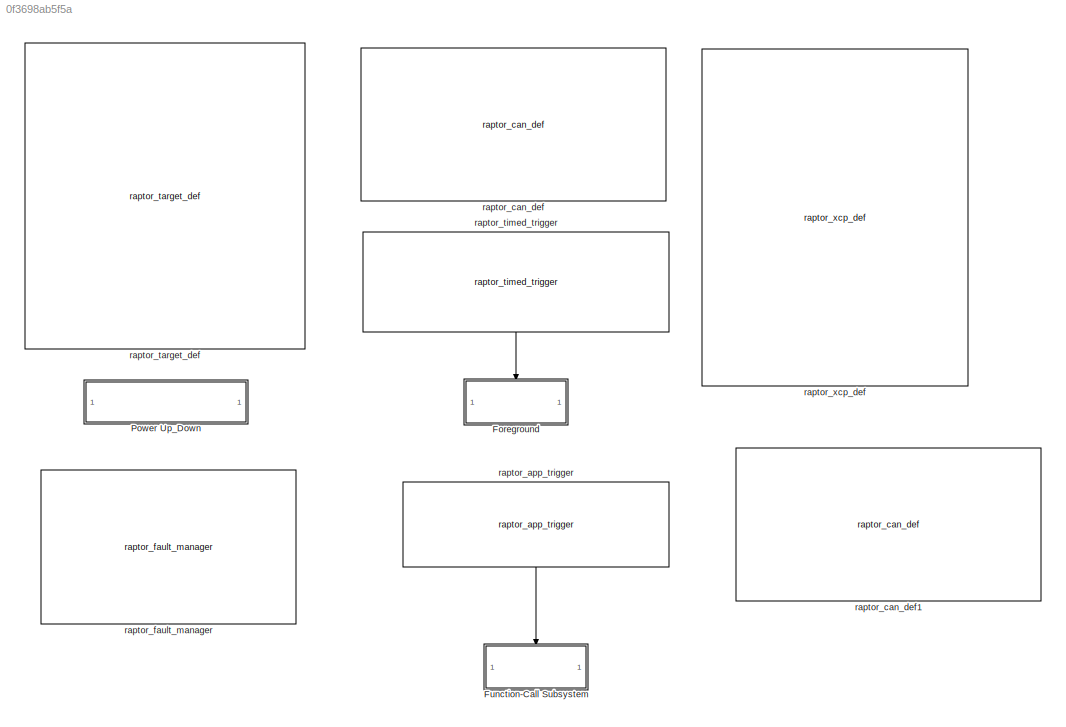
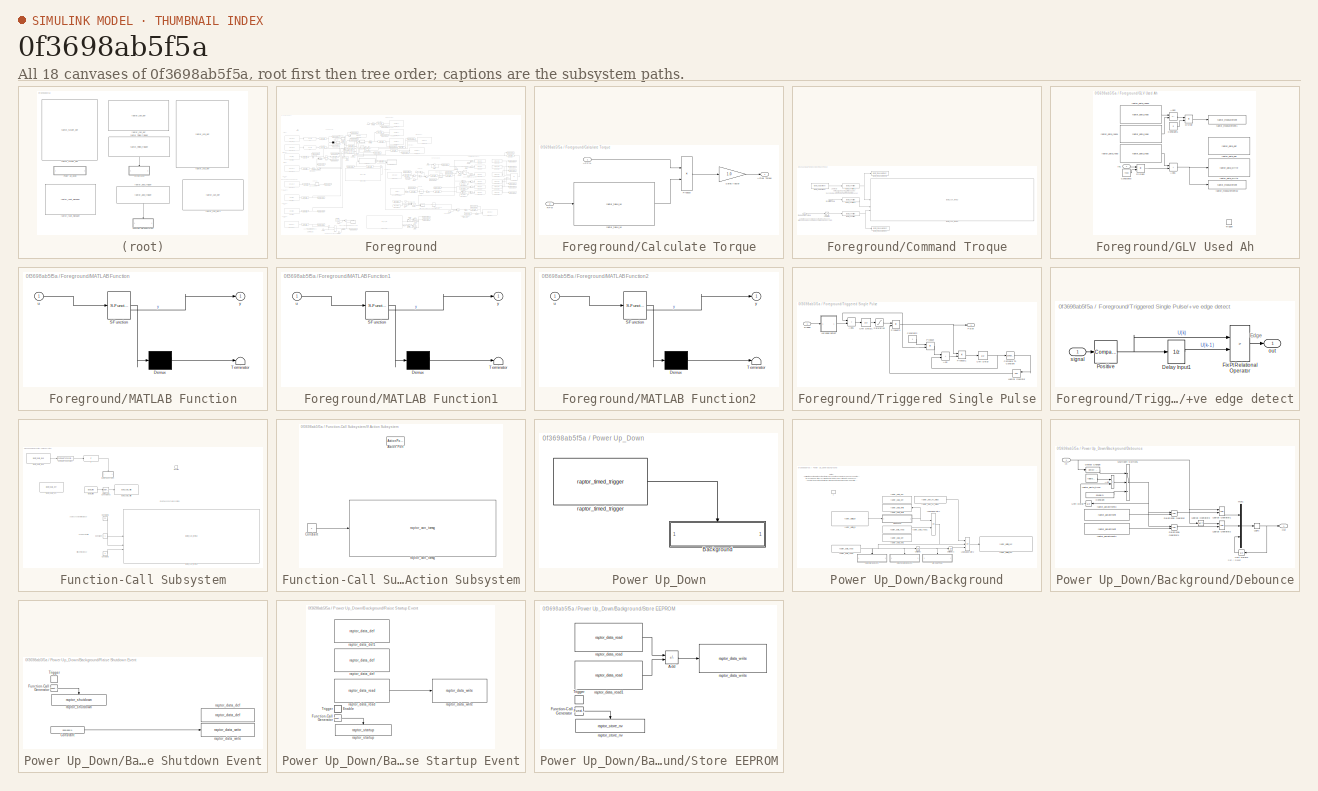
[diagram: thumbnail index - all 18 canvases of the model, root first then tree order]
MODEL slx_0f3698ab5f5a
KIND model
CONFIG AbsTol = auto
CONFIG EnableMultiTasking = on
CONFIG FixedStep = 0.005
CONFIG InitFcn = try, model_open; catch, end
CONFIG MaxStep = auto
CONFIG MinStep = auto
CONFIG PreLoadFcn = try, model_open; catch, disp('Error occurred while executing model pre-load callback: model_open.m'); disp('Please assure that the MATLAB working directory is set to the model directory before opening.'); end
CONFIG RelTol = 1e-3
CONFIG SampleTimeConstraint = Unconstrained
CONFIG SolverName = FixedStepDiscrete
CONFIG StartTime = 0.0
CONFIG StopTime = 10
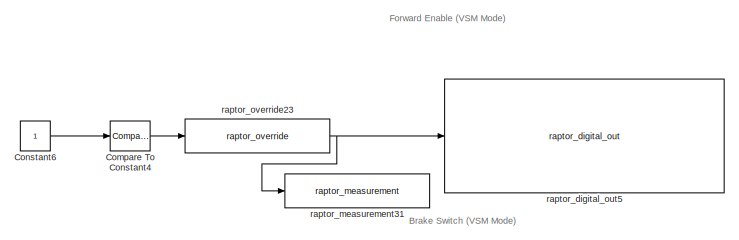
[diagram: Foreground - part 1/7, top center region]
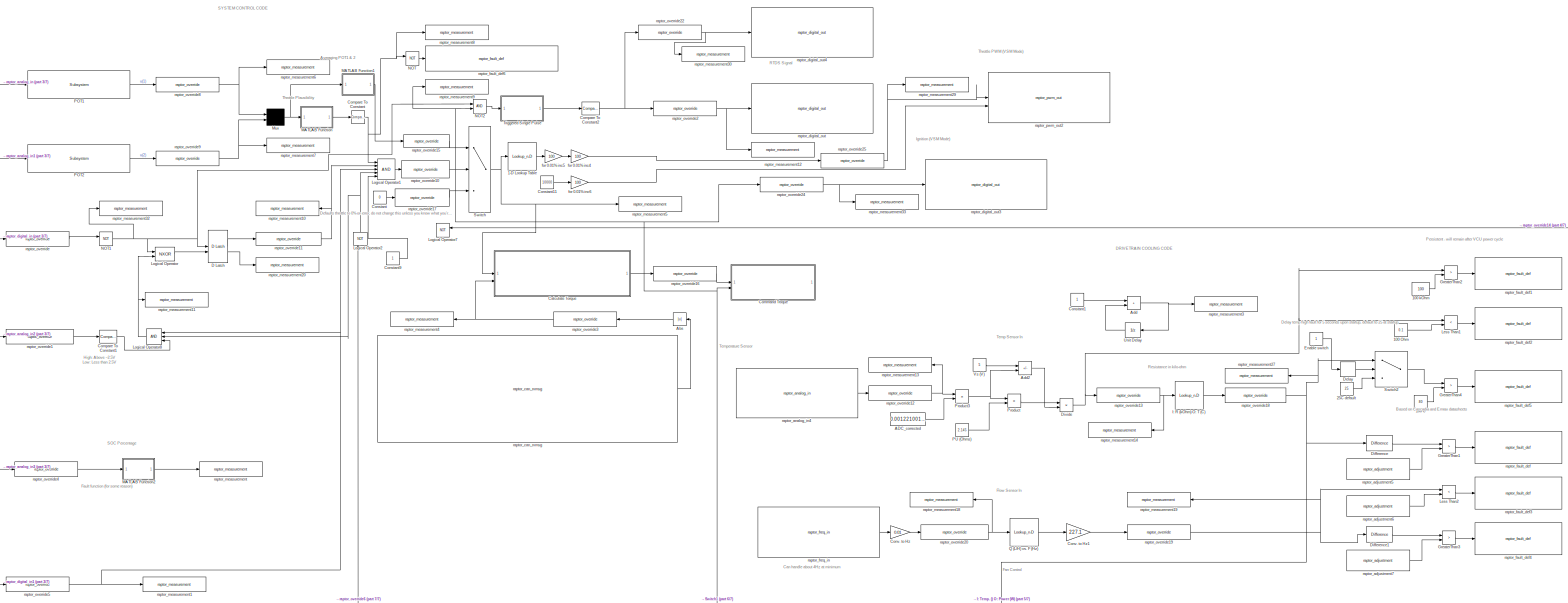
[diagram: Foreground - part 2/7, full width, middle band]
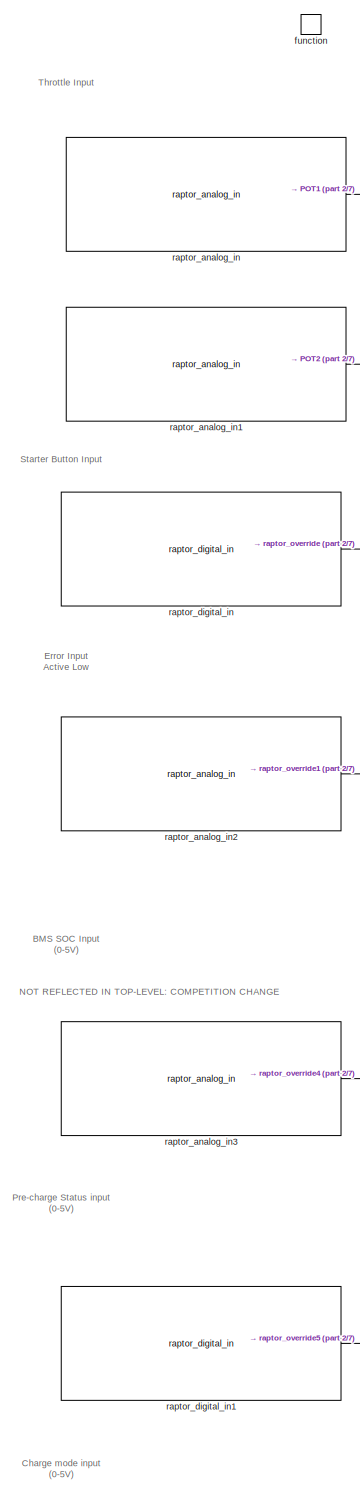
[diagram: Foreground - part 3/7, middle left region]
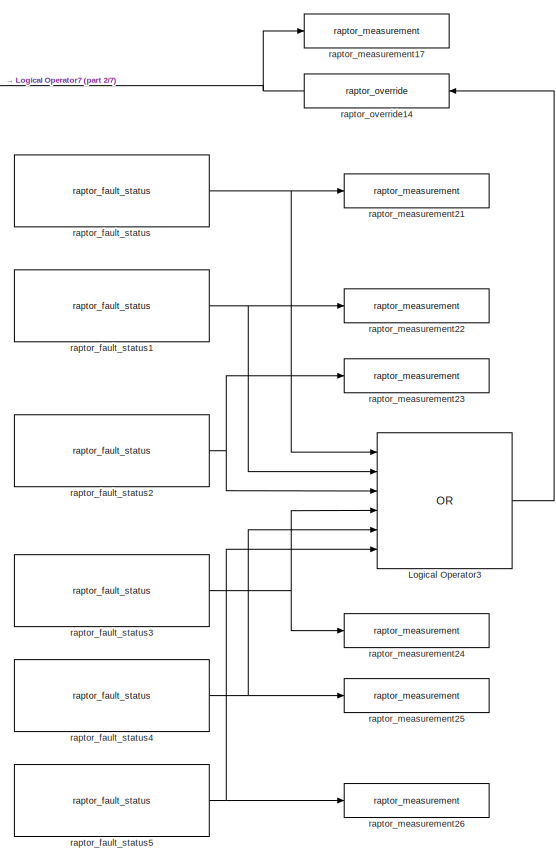
[diagram: Foreground - part 4/7, middle right region]
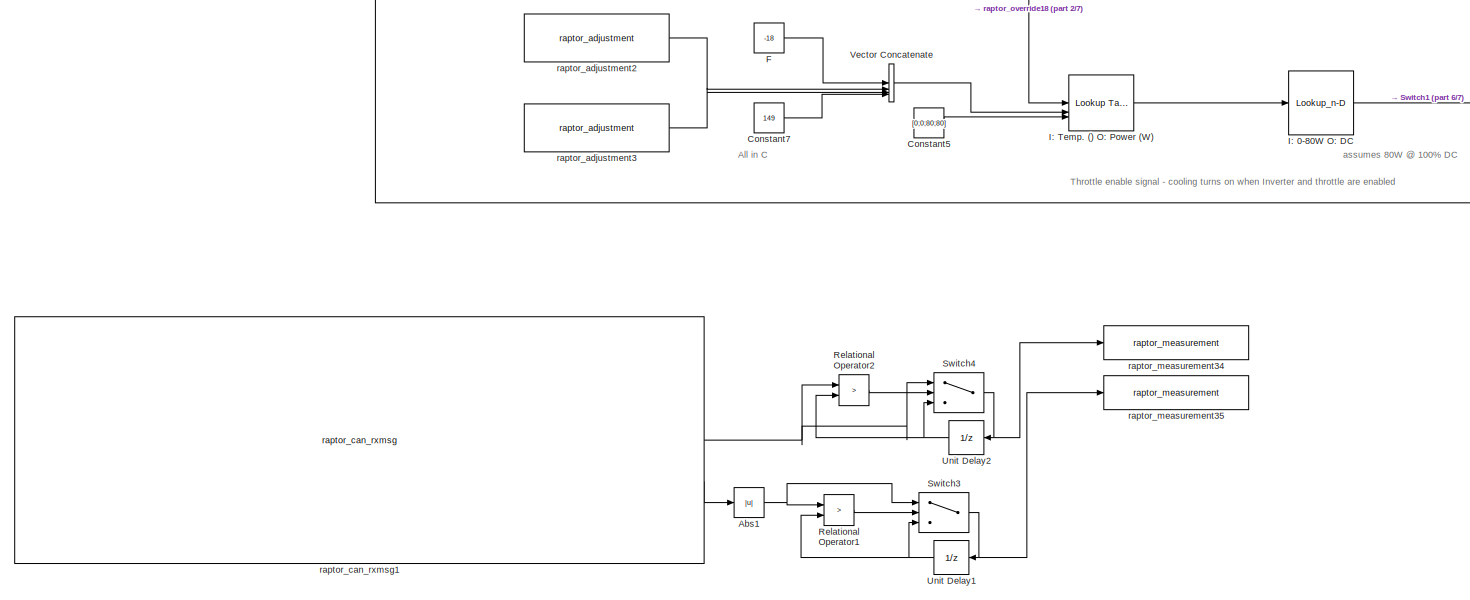
[diagram: Foreground - part 5/7, bottom center region]
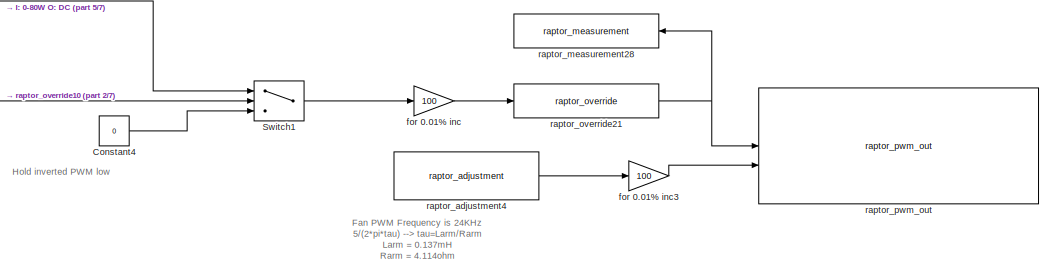
[diagram: Foreground - part 6/7, bottom right region]
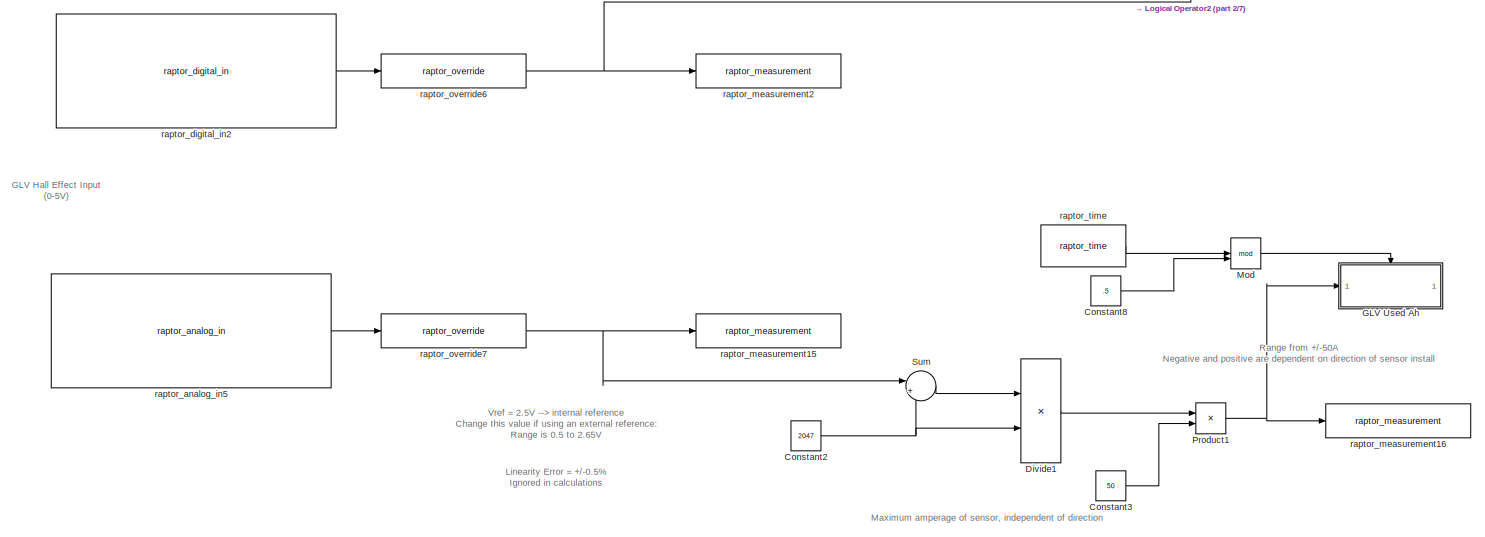
[diagram: Foreground - part 7/7, bottom left region]
BLOCK [SubSystem] Foreground
  RTWSystemCode = Nonreusable function
  TreatAsAtomicUnit = on
BLOCK [Lookup_n-D] Foreground/1-D Lookup Table
  BreakpointsForDimension1 = [0,1]
  InputPortMap = u0
  InternalRulePriority = Speed
  NumberOfTableDimensions = 1
  RndMeth = Simplest
  Table = [1,0]
BLOCK [Constant] Foreground/100 C
  Value = 80
BLOCK [Constant] Foreground/100 Ohm
  Value = 0.1
BLOCK [Constant] Foreground/100 kOhm
  Value = 100
BLOCK [Constant] Foreground/25C default
  Value = 25
BLOCK [Constant] Foreground/ADC_corrected
  Value = 0.00122100122
BLOCK [Abs] Foreground/Abs
  NameLocation = top
  SaturateOnIntegerOverflow = off
BLOCK [Abs] Foreground/Abs1
  SaturateOnIntegerOverflow = off
BLOCK [Sum] Foreground/Add
  IconShape = rectangular
BLOCK [Sum] Foreground/Add2
  IconShape = rectangular
  Inputs = +-
BLOCK [SubSystem] Foreground/Calculate Torque
BLOCK [Inport] Foreground/Calculate Torque/APP%
BLOCK [Outport] Foreground/Calculate Torque/Actual Torque
BLOCK [Product] Foreground/Calculate Torque/Product
BLOCK [Inport] Foreground/Calculate Torque/RPM
  Port = 2
BLOCK [Gain] Foreground/Calculate Torque/Safety factor
  Gain = 1.0
BLOCK [Reference] Foreground/Calculate Torque/raptor_table_1d  REF=Raptor_lib/Table Lookup/raptor_table_1d
  SourceBlock = Raptor_lib/Table Lookup/raptor_table_1d
  SourceProductName = Raptor
  SourceType = Table 1d
BLOCK [SubSystem] Foreground/Command Troque
BLOCK [Inport] Foreground/Command Troque/Inverter Enable
  Port = 2
BLOCK [Inport] Foreground/Command Troque/Requested Torque
BLOCK [Saturate] Foreground/Command Troque/Saturation
  LowerLimit = 0
  UpperLimit = 3276
BLOCK [Reference] Foreground/Command Troque/raptor_adjustment  REF=Raptor_lib/Data Storage/raptor_adjustment
  SourceBlock = Raptor_lib/Data Storage/raptor_adjustment
  SourceProductName = Raptor
  SourceType = Adjustment
BLOCK [Reference] Foreground/Command Troque/raptor_can_txmsg  REF=Raptor_lib/CAN/raptor_can_txmsg
  SourceBlock = Raptor_lib/CAN/raptor_can_txmsg
  SourceProductName = Raptor
  SourceType = CAN Send Message
BLOCK [Reference] Foreground/Command Troque/raptor_measurement  REF=Raptor_lib/Data Storage/raptor_measurement
  SourceBlock = Raptor_lib/Data Storage/raptor_measurement
  SourceProductName = Raptor
  SourceType = Measurement
BLOCK [Reference] Foreground/Command Troque/raptor_measurement1  REF=Raptor_lib/Data Storage/raptor_measurement
  SourceBlock = Raptor_lib/Data Storage/raptor_measurement
  SourceProductName = Raptor
  SourceType = Measurement
BLOCK [Reference] Foreground/Command Troque/raptor_override  REF=Raptor_lib/Data Storage/raptor_override
  SourceBlock = Raptor_lib/Data Storage/raptor_override
  SourceProductName = Raptor
  SourceType = Override
BLOCK [Reference] Foreground/Command Troque/raptor_override1  REF=Raptor_lib/Data Storage/raptor_override
  SourceBlock = Raptor_lib/Data Storage/raptor_override
  SourceProductName = Raptor
  SourceType = Override
BLOCK [Reference] Foreground/Command Troque/raptor_override2  REF=Raptor_lib/Data Storage/raptor_override
  SourceBlock = Raptor_lib/Data Storage/raptor_override
  SourceProductName = Raptor
  SourceType = Override
BLOCK [Reference] Foreground/Compare To Constant  REF=simulink/Logic and Bit
Operations/Compare
To Constant
  SourceBlock = simulink/Logic and Bit\nOperations/Compare\nTo Constant
  SourceType = Compare To Constant
BLOCK [Reference] Foreground/Compare To Constant1  REF=simulink/Logic and Bit
Operations/Compare
To Constant
  SourceBlock = simulink/Logic and Bit\nOperations/Compare\nTo Constant
  SourceType = Compare To Constant
BLOCK [Reference] Foreground/Compare To Constant2  REF=simulink/Logic and Bit
Operations/Compare
To Constant
  SourceBlock = simulink/Logic and Bit\nOperations/Compare\nTo Constant
  SourceType = Compare To Constant
BLOCK [Reference] Foreground/Compare To Constant4  REF=simulink/Logic and Bit
Operations/Compare
To Constant
  SourceBlock = simulink/Logic and Bit\nOperations/Compare\nTo Constant
  SourceType = Compare To Constant
BLOCK [Constant] Foreground/Constant
  Value = 0
BLOCK [Constant] Foreground/Constant1
BLOCK [Constant] Foreground/Constant11
  Value = 10000
BLOCK [Constant] Foreground/Constant2
  Value = 2047
BLOCK [Constant] Foreground/Constant3
  Value = 50
BLOCK [Constant] Foreground/Constant4
  Value = 0
BLOCK [Constant] Foreground/Constant5
  Value = [0;0;80;80]
BLOCK [Constant] Foreground/Constant6
  OutDataTypeStr = boolean
BLOCK [Constant] Foreground/Constant7
  Value = 149
BLOCK [Constant] Foreground/Constant8
  Value = .5
BLOCK [Constant] Foreground/Constant9
BLOCK [Gain] Foreground/Conv. to Hz
  Gain = 0.01
  OutDataTypeStr = uint32
  RndMeth = Nearest
BLOCK [Gain] Foreground/Conv. to Hz1
  Gain = 227.1
  OutDataTypeStr = uint32
BLOCK [Reference] Foreground/D Latch  REF=simulink_extras/Flip Flops/D Latch
  SourceBlock = simulink_extras/Flip Flops/D Latch
  SourceType = DLatch
BLOCK [Delay] Foreground/Delay
  DelayLength = 1000
  InitialCondition = 0
  InputPortMap = u0
BLOCK [Reference] Foreground/Difference  REF=simulink/Discrete/Difference
  SourceBlock = simulink/Discrete/Difference
  SourceType = Difference
BLOCK [Reference] Foreground/Difference1  REF=simulink/Discrete/Difference
  SourceBlock = simulink/Discrete/Difference
  SourceType = Difference
BLOCK [Product] Foreground/Divide
  Inputs = */
BLOCK [Product] Foreground/Divide1
  Inputs = */
BLOCK [Constant] Foreground/Enable switch
BLOCK [Constant] Foreground/F
  Value = -18
BLOCK [SubSystem] Foreground/GLV Used Ah
  TreatAsAtomicUnit = on
BLOCK [Sum] Foreground/GLV Used Ah/Add1
  IconShape = rectangular
BLOCK [Sum] Foreground/GLV Used Ah/Add2
  IconShape = rectangular
  Inputs = +-
BLOCK [Constant] Foreground/GLV Used Ah/Constant1
  Value = 5
BLOCK [Constant] Foreground/GLV Used Ah/Constant8
  Value = 7200
BLOCK [Product] Foreground/GLV Used Ah/Divide
  Inputs = */
BLOCK [Product] Foreground/GLV Used Ah/Divide2
  Inputs = */
BLOCK [Inport] Foreground/GLV Used Ah/In1
BLOCK [TriggerPort] Foreground/GLV Used Ah/Trigger
  StatesWhenEnabling = held
  VariantControl = (inherit)
BLOCK [Reference] Foreground/GLV Used Ah/raptor_data_def  REF=Raptor_lib/Data Storage/raptor_data_def
  SourceBlock = Raptor_lib/Data Storage/raptor_data_def
  SourceProductName = Raptor
  SourceType = Data Store Definition Block
BLOCK [Reference] Foreground/GLV Used Ah/raptor_data_read  REF=Raptor_lib/Data Storage/raptor_data_read
  SourceBlock = Raptor_lib/Data Storage/raptor_data_read
  SourceProductName = Raptor
  SourceType = Data Read Block
BLOCK [Reference] Foreground/GLV Used Ah/raptor_data_read1  REF=Raptor_lib/Data Storage/raptor_data_read
  SourceBlock = Raptor_lib/Data Storage/raptor_data_read
  SourceProductName = Raptor
  SourceType = Data Read Block
BLOCK [Reference] Foreground/GLV Used Ah/raptor_data_read2  REF=Raptor_lib/Data Storage/raptor_data_read
  SourceBlock = Raptor_lib/Data Storage/raptor_data_read
  SourceProductName = Raptor
  SourceType = Data Read Block
BLOCK [Reference] Foreground/GLV Used Ah/raptor_data_write  REF=Raptor_lib/Data Storage/raptor_data_write
  SourceBlock = Raptor_lib/Data Storage/raptor_data_write
  SourceProductName = Raptor
  SourceType = Data Write Block
BLOCK [Reference] Foreground/GLV Used Ah/raptor_measurement1  REF=Raptor_lib/Data Storage/raptor_measurement
  SourceBlock = Raptor_lib/Data Storage/raptor_measurement
  SourceProductName = Raptor
  SourceType = Measurement
BLOCK [Reference] Foreground/GLV Used Ah/raptor_measurement32  REF=Raptor_lib/Data Storage/raptor_measurement
  SourceBlock = Raptor_lib/Data Storage/raptor_measurement
  SourceProductName = Raptor
  SourceType = Measurement
BLOCK [RelationalOperator] Foreground/GreaterThan1
  InputSameDT = off
  Operator = >
  OutDataTypeStr = boolean
  RndMeth = Simplest
BLOCK [RelationalOperator] Foreground/GreaterThan2
  InputSameDT = off
  Operator = >
  OutDataTypeStr = boolean
  RndMeth = Simplest
BLOCK [RelationalOperator] Foreground/GreaterThan3
  InputSameDT = off
  Operator = >
  OutDataTypeStr = boolean
  RndMeth = Simplest
BLOCK [RelationalOperator] Foreground/GreaterThan4
  InputSameDT = off
  Operator = >
  OutDataTypeStr = boolean
  RndMeth = Simplest
BLOCK [Lookup_n-D] Foreground/I: 0-80W O: DC
  BreakpointsForDimension1 = [0;5;10;15;20;25;30;35;40;45;50;55;60;65;70;75;80]
  InputPortMap = u0
  InternalRulePriority = Speed
  NumberOfTableDimensions = 1
  RndMeth = Simplest
  Table = [100;93.75;87.5;81.25;75;68.75;62.5;56.25;50;43.75;37.5;31.25;25;18.75;12.5;6.25;0]
BLOCK [Lookup_n-D] Foreground/I: R (kOhm) O: T (C)
  BreakpointsForDimension1 = [0.583;0.6601;0.7487;0.8508;0.9688;1.106;1.265;1.452;1.67;1.928;2.232;2.593;3.025;3.541;4.163;4.914;5.827;6.942;8.311;10;12.1;14.71;17.99;22.13;27.39]
  InputPortMap = u0
  InternalRulePriority = Speed
  NumberOfTableDimensions = 1
  RndMeth = Simplest
  Table = [120;115;110;105;100;95;90;85;80;75;70;65;60;55;50;45;40;35;30;25;20;15;10;5;0]
BLOCK [Reference] Foreground/I: Temp. () O: Power (W)  REF=simulink/Lookup
Tables/Lookup
Table
Dynamic
  SourceBlock = simulink/Lookup\nTables/Lookup\nTable\nDynamic
  SourceType = Lookup Table Dynamic
BLOCK [RelationalOperator] Foreground/Less Than1
  InputSameDT = off
  Operator = <
  OutDataTypeStr = boolean
  RndMeth = Simplest
BLOCK [RelationalOperator] Foreground/Less Than2
  InputSameDT = off
  Operator = <
  OutDataTypeStr = boolean
  RndMeth = Simplest
BLOCK [Logic] Foreground/Logical Operator
  AllPortsSameDT = off
  IconShape = distinctive
  Operator = NXOR
  OutDataTypeStr = boolean
BLOCK [Logic] Foreground/Logical Operator1
  AllPortsSameDT = off
  IconShape = distinctive
  Inputs = 5
  OutDataTypeStr = boolean
BLOCK [Logic] Foreground/Logical Operator2
  AllPortsSameDT = off
  IconShape = distinctive
  NameLocation = right
  Operator = NOT
  OutDataTypeStr = boolean
BLOCK [Logic] Foreground/Logical Operator3
  AllPortsSameDT = off
  IconShape = distinctive
  Inputs = 6
  Operator = OR
  OutDataTypeStr = boolean
BLOCK [Logic] Foreground/Logical Operator7
  AllPortsSameDT = off
  IconShape = distinctive
  NameLocation = top
  Operator = NOT
  OutDataTypeStr = boolean
BLOCK [Logic] Foreground/Logical Operator8
  AllPortsSameDT = off
  IconShape = distinctive
  Inputs = 3
  NameLocation = top
  OutDataTypeStr = boolean
BLOCK [SubSystem] Foreground/MATLAB Function
  ErrorFcn = Stateflow.Translate.translate
  LibrarySourceBlock = simulink/User-Defined\nFunctions/MATLAB Function
  PermitHierarchicalResolution = ExplicitOnly
  SFBlockType = MATLAB Function
  TreatAsAtomicUnit = on
BLOCK [Demux] Foreground/MATLAB Function/ Demux 
  Outputs = 1
BLOCK [S-Function] Foreground/MATLAB Function/ SFunction 
  EnableBusSupport = on
  FunctionName = sf_sfun
  PortCounts = [1 2]
  SFcnIsStateOwnerBlock = off
  SFunctionDeploymentMode = off
  Tag = Stateflow S-Function 2
BLOCK [Terminator] Foreground/MATLAB Function/ Terminator 
BLOCK [Inport] Foreground/MATLAB Function/u
BLOCK [Outport] Foreground/MATLAB Function/y
BLOCK [SubSystem] Foreground/MATLAB Function1
  ErrorFcn = Stateflow.Translate.translate
  LibrarySourceBlock = simulink/User-Defined\nFunctions/MATLAB Function
  PermitHierarchicalResolution = ExplicitOnly
  SFBlockType = MATLAB Function
  TreatAsAtomicUnit = on
BLOCK [Demux] Foreground/MATLAB Function1/ Demux 
  Outputs = 1
BLOCK [S-Function] Foreground/MATLAB Function1/ SFunction 
  EnableBusSupport = on
  FunctionName = sf_sfun
  PortCounts = [1 2]
  SFcnIsStateOwnerBlock = off
  SFunctionDeploymentMode = off
  Tag = Stateflow S-Function 1
BLOCK [Terminator] Foreground/MATLAB Function1/ Terminator 
BLOCK [Inport] Foreground/MATLAB Function1/u
BLOCK [Outport] Foreground/MATLAB Function1/y
BLOCK [SubSystem] Foreground/MATLAB Function2
  ErrorFcn = Stateflow.Translate.translate
  LibrarySourceBlock = simulink/User-Defined\nFunctions/MATLAB Function
  PermitHierarchicalResolution = ExplicitOnly
  SFBlockType = MATLAB Function
  TreatAsAtomicUnit = on
BLOCK [Demux] Foreground/MATLAB Function2/ Demux 
  Outputs = 1
BLOCK [S-Function] Foreground/MATLAB Function2/ SFunction 
  EnableBusSupport = on
  FunctionName = sf_sfun
  PortCounts = [1 2]
  SFcnIsStateOwnerBlock = off
  SFunctionDeploymentMode = off
  Tag = Stateflow S-Function 3
BLOCK [Terminator] Foreground/MATLAB Function2/ Terminator 
BLOCK [Inport] Foreground/MATLAB Function2/u
BLOCK [Outport] Foreground/MATLAB Function2/y
BLOCK [Math] Foreground/Mod
  Operator = mod
  OutputSignalType = real
BLOCK [Mux] Foreground/Mux
  DisplayOption = signals
  Inputs = 2
BLOCK [Logic] Foreground/NOT
  AllPortsSameDT = off
  IconShape = distinctive
  Operator = NOT
  OutDataTypeStr = boolean
BLOCK [Logic] Foreground/NOT1
  AllPortsSameDT = off
  IconShape = distinctive
  Operator = NOT
  OutDataTypeStr = boolean
BLOCK [Logic] Foreground/NOT2
  AllPortsSameDT = off
  IconShape = distinctive
  OutDataTypeStr = boolean
BLOCK [Reference] Foreground/POT1  REF=Blocks_Library/Subsystem
  SourceBlock = Blocks_Library/Subsystem
BLOCK [Reference] Foreground/POT2  REF=Blocks_Library/Subsystem
  SourceBlock = Blocks_Library/Subsystem
BLOCK [Constant] Foreground/PU (Ohms)
  Value = 2.145
BLOCK [Product] Foreground/Product
BLOCK [Product] Foreground/Product1
BLOCK [Product] Foreground/Product3
BLOCK [Lookup_n-D] Foreground/Q (L//H) vs. F (Hz)
  BreakpointsForDimension1 = [16;32.5;49.3;65.5;82;90.2]
  ExtrapMethod = Clip
  InputPortMap = u0
  InternalRulePriority = Speed
  NumberOfTableDimensions = 1
  OutDataTypeStr = double
  RndMeth = Simplest
  Table = [120;240;360;480;600;720]
BLOCK [RelationalOperator] Foreground/Relational Operator1
  InputSameDT = off
  Operator = >
  OutDataTypeStr = boolean
  RndMeth = Simplest
BLOCK [RelationalOperator] Foreground/Relational Operator2
  InputSameDT = off
  Operator = >
  OutDataTypeStr = boolean
  RndMeth = Simplest
BLOCK [Sum] Foreground/Sum
  Inputs = |+-
BLOCK [Switch] Foreground/Switch
  InputSameDT = off
  SaturateOnIntegerOverflow = off
  Threshold = 1
BLOCK [Switch] Foreground/Switch1
  Criteria = u2 > Threshold
  InputSameDT = off
  SaturateOnIntegerOverflow = off
BLOCK [Switch] Foreground/Switch2
  Criteria = u2 > Threshold
  InputSameDT = off
  SaturateOnIntegerOverflow = off
BLOCK [Switch] Foreground/Switch3
  Criteria = u2 > Threshold
  InputSameDT = off
  SaturateOnIntegerOverflow = off
BLOCK [Switch] Foreground/Switch4
  Criteria = u2 > Threshold
  InputSameDT = off
  SaturateOnIntegerOverflow = off
BLOCK [SubSystem] Foreground/Triggered Single Pulse
  Description = Produce a signal pulse for the RTDS timer circuit
  TreatAsAtomicUnit = on
BLOCK [SubSystem] Foreground/Triggered Single Pulse/+ve edge detect
BLOCK [UnitDelay] Foreground/Triggered Single Pulse/+ve edge detect/Delay Input1
  Description = Store in Global RAM
  DisableCoverage = on
  HasFrameUpgradeWarning = on
  SampleTime = -1
BLOCK [RelationalOperator] Foreground/Triggered Single Pulse/+ve edge detect/FixPt Relational Operator
  InputSameDT = off
  Operator = >
  OutDataTypeStr = fixdt(0, 8)
  ZeroCross = off
BLOCK [Reference] Foreground/Triggered Single Pulse/+ve edge detect/Positive  REF=simulink/Logic and Bit
Operations/Compare
To Zero
  SourceBlock = simulink/Logic and Bit\nOperations/Compare\nTo Zero
  SourceType = Compare To Zero
BLOCK [Outport] Foreground/Triggered Single Pulse/+ve edge detect/out
BLOCK [Inport] Foreground/Triggered Single Pulse/+ve edge detect/signal
BLOCK [Sum] Foreground/Triggered Single Pulse/Add
  IconShape = rectangular
BLOCK [Sum] Foreground/Triggered Single Pulse/Add1
  IconShape = rectangular
BLOCK [Reference] Foreground/Triggered Single Pulse/Compare To Constant  REF=simulink/Logic and Bit
Operations/Compare
To Constant
  SourceBlock = simulink/Logic and Bit\nOperations/Compare\nTo Constant
  SourceType = Compare To Constant
BLOCK [Constant] Foreground/Triggered Single Pulse/Constant2
BLOCK [Logic] Foreground/Triggered Single Pulse/Logical Operator
  AllPortsSameDT = off
  Operator = NOT
  OutDataTypeStr = boolean
BLOCK [Product] Foreground/Triggered Single Pulse/Product
  RndMeth = Zero
BLOCK [Product] Foreground/Triggered Single Pulse/Product1
  RndMeth = Zero
BLOCK [Product] Foreground/Triggered Single Pulse/Product3
  RndMeth = Zero
BLOCK [Outport] Foreground/Triggered Single Pulse/Pulse
BLOCK [Saturate] Foreground/Triggered Single Pulse/Saturation
  LowerLimit = 0
  UpperLimit = 1
BLOCK [Inport] Foreground/Triggered Single Pulse/Trigger
BLOCK [UnitDelay] Foreground/Triggered Single Pulse/Unit Delay
  HasFrameUpgradeWarning = on
  SampleTime = -1
BLOCK [UnitDelay] Foreground/Triggered Single Pulse/Unit Delay1
  HasFrameUpgradeWarning = on
  SampleTime = -1
BLOCK [UnitDelay] Foreground/Unit Delay
  HasFrameUpgradeWarning = on
  NameLocation = top
  SampleTime = -1
BLOCK [UnitDelay] Foreground/Unit Delay1
  HasFrameUpgradeWarning = on
  NameLocation = top
  SampleTime = -1
BLOCK [UnitDelay] Foreground/Unit Delay2
  HasFrameUpgradeWarning = on
  NameLocation = top
  SampleTime = -1
BLOCK [Concatenate] Foreground/Vector Concatenate
  NameLocation = right
  NumInputs = 4
BLOCK [Constant] Foreground/Vs (V)
  Value = 5
BLOCK [Gain] Foreground/for 0.01% inc
  Gain = 100
  OutDataTypeStr = Inherit: Inherit via back propagation
BLOCK [Gain] Foreground/for 0.01% inc3
  Gain = 100
  OutDataTypeStr = Inherit: Inherit via back propagation
BLOCK [Gain] Foreground/for 0.01% inc4
  Gain = 100
  OutDataTypeStr = Inherit: Inherit via back propagation
BLOCK [Gain] Foreground/for 0.01% inc5
  Gain = 100
  OutDataTypeStr = Inherit: Inherit via back propagation
BLOCK [Gain] Foreground/for 0.01% inc6
  Gain = 100
  OutDataTypeStr = Inherit: Inherit via back propagation
BLOCK [TriggerPort] Foreground/function
  StatesWhenEnabling = held
  TriggerType = function-call
  VariantControl = (inherit)
BLOCK [Reference] Foreground/raptor_adjustment2  REF=Raptor_lib/Data Storage/raptor_adjustment
  SourceBlock = Raptor_lib/Data Storage/raptor_adjustment
  SourceProductName = Raptor
  SourceType = Adjustment
BLOCK [Reference] Foreground/raptor_adjustment3  REF=Raptor_lib/Data Storage/raptor_adjustment
  SourceBlock = Raptor_lib/Data Storage/raptor_adjustment
  SourceProductName = Raptor
  SourceType = Adjustment
BLOCK [Reference] Foreground/raptor_adjustment4  REF=Raptor_lib/Data Storage/raptor_adjustment
  SourceBlock = Raptor_lib/Data Storage/raptor_adjustment
  SourceProductName = Raptor
  SourceType = Adjustment
BLOCK [Reference] Foreground/raptor_adjustment5  REF=Raptor_lib/Data Storage/raptor_adjustment
  SourceBlock = Raptor_lib/Data Storage/raptor_adjustment
  SourceProductName = Raptor
  SourceType = Adjustment
BLOCK [Reference] Foreground/raptor_adjustment6  REF=Raptor_lib/Data Storage/raptor_adjustment
  SourceBlock = Raptor_lib/Data Storage/raptor_adjustment
  SourceProductName = Raptor
  SourceType = Adjustment
BLOCK [Reference] Foreground/raptor_adjustment7  REF=Raptor_lib/Data Storage/raptor_adjustment
  SourceBlock = Raptor_lib/Data Storage/raptor_adjustment
  SourceProductName = Raptor
  SourceType = Adjustment
BLOCK [Reference] Foreground/raptor_analog_in  REF=Raptor_lib/Input & Output/raptor_analog_in
  SourceBlock = Raptor_lib/Input & Output/raptor_analog_in
  SourceProductName = Raptor
  SourceType = Analog Input
BLOCK [Reference] Foreground/raptor_analog_in1  REF=Raptor_lib/Input & Output/raptor_analog_in
  SourceBlock = Raptor_lib/Input & Output/raptor_analog_in
  SourceProductName = Raptor
  SourceType = Analog Input
BLOCK [Reference] Foreground/raptor_analog_in2  REF=Raptor_lib/Input & Output/raptor_analog_in
  SourceBlock = Raptor_lib/Input & Output/raptor_analog_in
  SourceProductName = Raptor
  SourceType = Analog Input
BLOCK [Reference] Foreground/raptor_analog_in3  REF=Raptor_lib/Input & Output/raptor_analog_in
  SourceBlock = Raptor_lib/Input & Output/raptor_analog_in
  SourceProductName = Raptor
  SourceType = Analog Input
BLOCK [Reference] Foreground/raptor_analog_in4  REF=Raptor_lib/Input & Output/raptor_analog_in
  SourceBlock = Raptor_lib/Input & Output/raptor_analog_in
  SourceProductName = Raptor
  SourceType = Analog Input
BLOCK [Reference] Foreground/raptor_analog_in5  REF=Raptor_lib/Input & Output/raptor_analog_in
  SourceBlock = Raptor_lib/Input & Output/raptor_analog_in
  SourceProductName = Raptor
  SourceType = Analog Input
BLOCK [Reference] Foreground/raptor_can_rxmsg  REF=Raptor_lib/CAN/raptor_can_rxmsg
  SourceBlock = Raptor_lib/CAN/raptor_can_rxmsg
  SourceProductName = Raptor
  SourceType = CAN Receive Message
BLOCK [Reference] Foreground/raptor_can_rxmsg1  REF=Raptor_lib/CAN/raptor_can_rxmsg
  SourceBlock = Raptor_lib/CAN/raptor_can_rxmsg
  SourceProductName = Raptor
  SourceType = CAN Receive Message
BLOCK [Reference] Foreground/raptor_digital_in  REF=Raptor_lib/Input & Output/raptor_digital_in
  SourceBlock = Raptor_lib/Input & Output/raptor_digital_in
  SourceProductName = Raptor
  SourceType = Digital Input Block
BLOCK [Reference] Foreground/raptor_digital_in1  REF=Raptor_lib/Input & Output/raptor_digital_in
  SourceBlock = Raptor_lib/Input & Output/raptor_digital_in
  SourceProductName = Raptor
  SourceType = Digital Input Block
BLOCK [Reference] Foreground/raptor_digital_in2  REF=Raptor_lib/Input & Output/raptor_digital_in
  SourceBlock = Raptor_lib/Input & Output/raptor_digital_in
  SourceProductName = Raptor
  SourceType = Digital Input Block
BLOCK [Reference] Foreground/raptor_digital_out  REF=Raptor_lib/Input & Output/raptor_digital_out
  SourceBlock = Raptor_lib/Input & Output/raptor_digital_out
  SourceProductName = Raptor
  SourceType = Digital Output
BLOCK [Reference] Foreground/raptor_digital_out3  REF=Raptor_lib/Input & Output/raptor_digital_out
  SourceBlock = Raptor_lib/Input & Output/raptor_digital_out
  SourceProductName = Raptor
  SourceType = Digital Output
BLOCK [Reference] Foreground/raptor_digital_out4  REF=Raptor_lib/Input & Output/raptor_digital_out
  SourceBlock = Raptor_lib/Input & Output/raptor_digital_out
  SourceProductName = Raptor
  SourceType = Digital Output
BLOCK [Reference] Foreground/raptor_digital_out5  REF=Raptor_lib/Input & Output/raptor_digital_out
  SourceBlock = Raptor_lib/Input & Output/raptor_digital_out
  SourceProductName = Raptor
  SourceType = Digital Output
BLOCK [Reference] Foreground/raptor_fault_def  REF=Raptor_lib/Faults/raptor_fault_def
  SourceBlock = Raptor_lib/Faults/raptor_fault_def
  SourceProductName = Raptor
  SourceType = Fault Definition
BLOCK [Reference] Foreground/raptor_fault_def1  REF=Raptor_lib/Faults/raptor_fault_def
  SourceBlock = Raptor_lib/Faults/raptor_fault_def
  SourceProductName = Raptor
  SourceType = Fault Definition
BLOCK [Reference] Foreground/raptor_fault_def2  REF=Raptor_lib/Faults/raptor_fault_def
  SourceBlock = Raptor_lib/Faults/raptor_fault_def
  SourceProductName = Raptor
  SourceType = Fault Definition
BLOCK [Reference] Foreground/raptor_fault_def3  REF=Raptor_lib/Faults/raptor_fault_def
  SourceBlock = Raptor_lib/Faults/raptor_fault_def
  SourceProductName = Raptor
  SourceType = Fault Definition
BLOCK [Reference] Foreground/raptor_fault_def4  REF=Raptor_lib/Faults/raptor_fault_def
  SourceBlock = Raptor_lib/Faults/raptor_fault_def
  SourceProductName = Raptor
  SourceType = Fault Definition
BLOCK [Reference] Foreground/raptor_fault_def5  REF=Raptor_lib/Faults/raptor_fault_def
  SourceBlock = Raptor_lib/Faults/raptor_fault_def
  SourceProductName = Raptor
  SourceType = Fault Definition
BLOCK [Reference] Foreground/raptor_fault_def6  REF=Raptor_lib/Faults/raptor_fault_def
  SourceBlock = Raptor_lib/Faults/raptor_fault_def
  SourceProductName = Raptor
  SourceType = Fault Definition
BLOCK [Reference] Foreground/raptor_fault_status  REF=Raptor_lib/Faults/raptor_fault_status
  SourceBlock = Raptor_lib/Faults/raptor_fault_status
  SourceProductName = Raptor
  SourceType = Fault Status
BLOCK [Reference] Foreground/raptor_fault_status1  REF=Raptor_lib/Faults/raptor_fault_status
  SourceBlock = Raptor_lib/Faults/raptor_fault_status
  SourceProductName = Raptor
  SourceType = Fault Status
BLOCK [Reference] Foreground/raptor_fault_status2  REF=Raptor_lib/Faults/raptor_fault_status
  SourceBlock = Raptor_lib/Faults/raptor_fault_status
  SourceProductName = Raptor
  SourceType = Fault Status
BLOCK [Reference] Foreground/raptor_fault_status3  REF=Raptor_lib/Faults/raptor_fault_status
  SourceBlock = Raptor_lib/Faults/raptor_fault_status
  SourceProductName = Raptor
  SourceType = Fault Status
BLOCK [Reference] Foreground/raptor_fault_status4  REF=Raptor_lib/Faults/raptor_fault_status
  SourceBlock = Raptor_lib/Faults/raptor_fault_status
  SourceProductName = Raptor
  SourceType = Fault Status
BLOCK [Reference] Foreground/raptor_fault_status5  REF=Raptor_lib/Faults/raptor_fault_status
  SourceBlock = Raptor_lib/Faults/raptor_fault_status
  SourceProductName = Raptor
  SourceType = Fault Status
BLOCK [Reference] Foreground/raptor_freq_in  REF=Raptor_lib/Input & Output/raptor_freq_in
  SourceBlock = Raptor_lib/Input & Output/raptor_freq_in
  SourceProductName = Raptor
  SourceType = Frequency Input Block
BLOCK [Reference] Foreground/raptor_measurement  REF=Raptor_lib/Data Storage/raptor_measurement
  SourceBlock = Raptor_lib/Data Storage/raptor_measurement
  SourceProductName = Raptor
  SourceType = Measurement
BLOCK [Reference] Foreground/raptor_measurement1  REF=Raptor_lib/Data Storage/raptor_measurement
  SourceBlock = Raptor_lib/Data Storage/raptor_measurement
  SourceProductName = Raptor
  SourceType = Measurement
BLOCK [Reference] Foreground/raptor_measurement10  REF=Raptor_lib/Data Storage/raptor_measurement
  NameLocation = top
  SourceBlock = Raptor_lib/Data Storage/raptor_measurement
  SourceProductName = Raptor
  SourceType = Measurement
BLOCK [Reference] Foreground/raptor_measurement11  REF=Raptor_lib/Data Storage/raptor_measurement
  SourceBlock = Raptor_lib/Data Storage/raptor_measurement
  SourceProductName = Raptor
  SourceType = Measurement
BLOCK [Reference] Foreground/raptor_measurement12  REF=Raptor_lib/Data Storage/raptor_measurement
  SourceBlock = Raptor_lib/Data Storage/raptor_measurement
  SourceProductName = Raptor
  SourceType = Measurement
BLOCK [Reference] Foreground/raptor_measurement13  REF=Raptor_lib/Data Storage/raptor_measurement
  NameLocation = top
  SourceBlock = Raptor_lib/Data Storage/raptor_measurement
  SourceProductName = Raptor
  SourceType = Measurement
BLOCK [Reference] Foreground/raptor_measurement14  REF=Raptor_lib/Data Storage/raptor_measurement
  NameLocation = top
  SourceBlock = Raptor_lib/Data Storage/raptor_measurement
  SourceProductName = Raptor
  SourceType = Measurement
BLOCK [Reference] Foreground/raptor_measurement15  REF=Raptor_lib/Data Storage/raptor_measurement
  SourceBlock = Raptor_lib/Data Storage/raptor_measurement
  SourceProductName = Raptor
  SourceType = Measurement
BLOCK [Reference] Foreground/raptor_measurement16  REF=Raptor_lib/Data Storage/raptor_measurement
  SourceBlock = Raptor_lib/Data Storage/raptor_measurement
  SourceProductName = Raptor
  SourceType = Measurement
BLOCK [Reference] Foreground/raptor_measurement17  REF=Raptor_lib/Data Storage/raptor_measurement
  SourceBlock = Raptor_lib/Data Storage/raptor_measurement
  SourceProductName = Raptor
  SourceType = Measurement
BLOCK [Reference] Foreground/raptor_measurement18  REF=Raptor_lib/Data Storage/raptor_measurement
  NameLocation = top
  SourceBlock = Raptor_lib/Data Storage/raptor_measurement
  SourceProductName = Raptor
  SourceType = Measurement
BLOCK [Reference] Foreground/raptor_measurement19  REF=Raptor_lib/Data Storage/raptor_measurement
  NameLocation = top
  SourceBlock = Raptor_lib/Data Storage/raptor_measurement
  SourceProductName = Raptor
  SourceType = Measurement
BLOCK [Reference] Foreground/raptor_measurement2  REF=Raptor_lib/Data Storage/raptor_measurement
  SourceBlock = Raptor_lib/Data Storage/raptor_measurement
  SourceProductName = Raptor
  SourceType = Measurement
BLOCK [Reference] Foreground/raptor_measurement20  REF=Raptor_lib/Data Storage/raptor_measurement
  SourceBlock = Raptor_lib/Data Storage/raptor_measurement
  SourceProductName = Raptor
  SourceType = Measurement
BLOCK [Reference] Foreground/raptor_measurement21  REF=Raptor_lib/Data Storage/raptor_measurement
  SourceBlock = Raptor_lib/Data Storage/raptor_measurement
  SourceProductName = Raptor
  SourceType = Measurement
BLOCK [Reference] Foreground/raptor_measurement22  REF=Raptor_lib/Data Storage/raptor_measurement
  SourceBlock = Raptor_lib/Data Storage/raptor_measurement
  SourceProductName = Raptor
  SourceType = Measurement
BLOCK [Reference] Foreground/raptor_measurement23  REF=Raptor_lib/Data Storage/raptor_measurement
  SourceBlock = Raptor_lib/Data Storage/raptor_measurement
  SourceProductName = Raptor
  SourceType = Measurement
BLOCK [Reference] Foreground/raptor_measurement24  REF=Raptor_lib/Data Storage/raptor_measurement
  SourceBlock = Raptor_lib/Data Storage/raptor_measurement
  SourceProductName = Raptor
  SourceType = Measurement
BLOCK [Reference] Foreground/raptor_measurement25  REF=Raptor_lib/Data Storage/raptor_measurement
  SourceBlock = Raptor_lib/Data Storage/raptor_measurement
  SourceProductName = Raptor
  SourceType = Measurement
BLOCK [Reference] Foreground/raptor_measurement26  REF=Raptor_lib/Data Storage/raptor_measurement
  SourceBlock = Raptor_lib/Data Storage/raptor_measurement
  SourceProductName = Raptor
  SourceType = Measurement
BLOCK [Reference] Foreground/raptor_measurement27  REF=Raptor_lib/Data Storage/raptor_measurement
  NameLocation = top
  SourceBlock = Raptor_lib/Data Storage/raptor_measurement
  SourceProductName = Raptor
  SourceType = Measurement
BLOCK [Reference] Foreground/raptor_measurement28  REF=Raptor_lib/Data Storage/raptor_measurement
  NameLocation = top
  SourceBlock = Raptor_lib/Data Storage/raptor_measurement
  SourceProductName = Raptor
  SourceType = Measurement
BLOCK [Reference] Foreground/raptor_measurement29  REF=Raptor_lib/Data Storage/raptor_measurement
  SourceBlock = Raptor_lib/Data Storage/raptor_measurement
  SourceProductName = Raptor
  SourceType = Measurement
BLOCK [Reference] Foreground/raptor_measurement3  REF=Raptor_lib/Data Storage/raptor_measurement
  SourceBlock = Raptor_lib/Data Storage/raptor_measurement
  SourceProductName = Raptor
  SourceType = Measurement
BLOCK [Reference] Foreground/raptor_measurement30  REF=Raptor_lib/Data Storage/raptor_measurement
  SourceBlock = Raptor_lib/Data Storage/raptor_measurement
  SourceProductName = Raptor
  SourceType = Measurement
BLOCK [Reference] Foreground/raptor_measurement31  REF=Raptor_lib/Data Storage/raptor_measurement
  SourceBlock = Raptor_lib/Data Storage/raptor_measurement
  SourceProductName = Raptor
  SourceType = Measurement
BLOCK [Reference] Foreground/raptor_measurement32  REF=Raptor_lib/Data Storage/raptor_measurement
  SourceBlock = Raptor_lib/Data Storage/raptor_measurement
  SourceProductName = Raptor
  SourceType = Measurement
BLOCK [Reference] Foreground/raptor_measurement33  REF=Raptor_lib/Data Storage/raptor_measurement
  SourceBlock = Raptor_lib/Data Storage/raptor_measurement
  SourceProductName = Raptor
  SourceType = Measurement
BLOCK [Reference] Foreground/raptor_measurement34  REF=Raptor_lib/Data Storage/raptor_measurement
  SourceBlock = Raptor_lib/Data Storage/raptor_measurement
  SourceProductName = Raptor
  SourceType = Measurement
BLOCK [Reference] Foreground/raptor_measurement35  REF=Raptor_lib/Data Storage/raptor_measurement
  SourceBlock = Raptor_lib/Data Storage/raptor_measurement
  SourceProductName = Raptor
  SourceType = Measurement
BLOCK [Reference] Foreground/raptor_measurement4  REF=Raptor_lib/Data Storage/raptor_measurement
  NameLocation = top
  SourceBlock = Raptor_lib/Data Storage/raptor_measurement
  SourceProductName = Raptor
  SourceType = Measurement
BLOCK [Reference] Foreground/raptor_measurement5  REF=Raptor_lib/Data Storage/raptor_measurement
  SourceBlock = Raptor_lib/Data Storage/raptor_measurement
  SourceProductName = Raptor
  SourceType = Measurement
BLOCK [Reference] Foreground/raptor_measurement6  REF=Raptor_lib/Data Storage/raptor_measurement
  SourceBlock = Raptor_lib/Data Storage/raptor_measurement
  SourceProductName = Raptor
  SourceType = Measurement
BLOCK [Reference] Foreground/raptor_measurement7  REF=Raptor_lib/Data Storage/raptor_measurement
  SourceBlock = Raptor_lib/Data Storage/raptor_measurement
  SourceProductName = Raptor
  SourceType = Measurement
BLOCK [Reference] Foreground/raptor_measurement8  REF=Raptor_lib/Data Storage/raptor_measurement
  SourceBlock = Raptor_lib/Data Storage/raptor_measurement
  SourceProductName = Raptor
  SourceType = Measurement
BLOCK [Reference] Foreground/raptor_measurement9  REF=Raptor_lib/Data Storage/raptor_measurement
  SourceBlock = Raptor_lib/Data Storage/raptor_measurement
  SourceProductName = Raptor
  SourceType = Measurement
BLOCK [Reference] Foreground/raptor_override  REF=Raptor_lib/Data Storage/raptor_override
  SourceBlock = Raptor_lib/Data Storage/raptor_override
  SourceProductName = Raptor
  SourceType = Override
BLOCK [Reference] Foreground/raptor_override1  REF=Raptor_lib/Data Storage/raptor_override
  SourceBlock = Raptor_lib/Data Storage/raptor_override
  SourceProductName = Raptor
  SourceType = Override
BLOCK [Reference] Foreground/raptor_override10  REF=Raptor_lib/Data Storage/raptor_override
  SourceBlock = Raptor_lib/Data Storage/raptor_override
  SourceProductName = Raptor
  SourceType = Override
BLOCK [Reference] Foreground/raptor_override11  REF=Raptor_lib/Data Storage/raptor_override
  SourceBlock = Raptor_lib/Data Storage/raptor_override
  SourceProductName = Raptor
  SourceType = Override
BLOCK [Reference] Foreground/raptor_override12  REF=Raptor_lib/Data Storage/raptor_override
  SourceBlock = Raptor_lib/Data Storage/raptor_override
  SourceProductName = Raptor
  SourceType = Override
BLOCK [Reference] Foreground/raptor_override13  REF=Raptor_lib/Data Storage/raptor_override
  SourceBlock = Raptor_lib/Data Storage/raptor_override
  SourceProductName = Raptor
  SourceType = Override
BLOCK [Reference] Foreground/raptor_override14  REF=Raptor_lib/Data Storage/raptor_override
  NameLocation = top
  SourceBlock = Raptor_lib/Data Storage/raptor_override
  SourceProductName = Raptor
  SourceType = Override
BLOCK [Reference] Foreground/raptor_override15  REF=Raptor_lib/Data Storage/raptor_override
  SourceBlock = Raptor_lib/Data Storage/raptor_override
  SourceProductName = Raptor
  SourceType = Override
BLOCK [Reference] Foreground/raptor_override16  REF=Raptor_lib/Data Storage/raptor_override
  SourceBlock = Raptor_lib/Data Storage/raptor_override
  SourceProductName = Raptor
  SourceType = Override
BLOCK [Reference] Foreground/raptor_override17  REF=Raptor_lib/Data Storage/raptor_override
  SourceBlock = Raptor_lib/Data Storage/raptor_override
  SourceProductName = Raptor
  SourceType = Override
BLOCK [Reference] Foreground/raptor_override18  REF=Raptor_lib/Data Storage/raptor_override
  SourceBlock = Raptor_lib/Data Storage/raptor_override
  SourceProductName = Raptor
  SourceType = Override
BLOCK [Reference] Foreground/raptor_override19  REF=Raptor_lib/Data Storage/raptor_override
  SourceBlock = Raptor_lib/Data Storage/raptor_override
  SourceProductName = Raptor
  SourceType = Override
BLOCK [Reference] Foreground/raptor_override2  REF=Raptor_lib/Data Storage/raptor_override
  SourceBlock = Raptor_lib/Data Storage/raptor_override
  SourceProductName = Raptor
  SourceType = Override
BLOCK [Reference] Foreground/raptor_override20  REF=Raptor_lib/Data Storage/raptor_override
  SourceBlock = Raptor_lib/Data Storage/raptor_override
  SourceProductName = Raptor
  SourceType = Override
BLOCK [Reference] Foreground/raptor_override21  REF=Raptor_lib/Data Storage/raptor_override
  SourceBlock = Raptor_lib/Data Storage/raptor_override
  SourceProductName = Raptor
  SourceType = Override
BLOCK [Reference] Foreground/raptor_override22  REF=Raptor_lib/Data Storage/raptor_override
  SourceBlock = Raptor_lib/Data Storage/raptor_override
  SourceProductName = Raptor
  SourceType = Override
BLOCK [Reference] Foreground/raptor_override23  REF=Raptor_lib/Data Storage/raptor_override
  SourceBlock = Raptor_lib/Data Storage/raptor_override
  SourceProductName = Raptor
  SourceType = Override
BLOCK [Reference] Foreground/raptor_override24  REF=Raptor_lib/Data Storage/raptor_override
  SourceBlock = Raptor_lib/Data Storage/raptor_override
  SourceProductName = Raptor
  SourceType = Override
BLOCK [Reference] Foreground/raptor_override25  REF=Raptor_lib/Data Storage/raptor_override
  SourceBlock = Raptor_lib/Data Storage/raptor_override
  SourceProductName = Raptor
  SourceType = Override
BLOCK [Reference] Foreground/raptor_override3  REF=Raptor_lib/Data Storage/raptor_override
  NameLocation = top
  SourceBlock = Raptor_lib/Data Storage/raptor_override
  SourceProductName = Raptor
  SourceType = Override
BLOCK [Reference] Foreground/raptor_override4  REF=Raptor_lib/Data Storage/raptor_override
  SourceBlock = Raptor_lib/Data Storage/raptor_override
  SourceProductName = Raptor
  SourceType = Override
BLOCK [Reference] Foreground/raptor_override5  REF=Raptor_lib/Data Storage/raptor_override
  SourceBlock = Raptor_lib/Data Storage/raptor_override
  SourceProductName = Raptor
  SourceType = Override
BLOCK [Reference] Foreground/raptor_override6  REF=Raptor_lib/Data Storage/raptor_override
  SourceBlock = Raptor_lib/Data Storage/raptor_override
  SourceProductName = Raptor
  SourceType = Override
BLOCK [Reference] Foreground/raptor_override7  REF=Raptor_lib/Data Storage/raptor_override
  SourceBlock = Raptor_lib/Data Storage/raptor_override
  SourceProductName = Raptor
  SourceType = Override
BLOCK [Reference] Foreground/raptor_override8  REF=Raptor_lib/Data Storage/raptor_override
  SourceBlock = Raptor_lib/Data Storage/raptor_override
  SourceProductName = Raptor
  SourceType = Override
BLOCK [Reference] Foreground/raptor_override9  REF=Raptor_lib/Data Storage/raptor_override
  SourceBlock = Raptor_lib/Data Storage/raptor_override
  SourceProductName = Raptor
  SourceType = Override
BLOCK [Reference] Foreground/raptor_pwm_out  REF=Raptor_lib/Input & Output/raptor_pwm_out
  SourceBlock = Raptor_lib/Input & Output/raptor_pwm_out
  SourceProductName = Raptor
  SourceType = PWM Output Block
BLOCK [Reference] Foreground/raptor_pwm_out2  REF=Raptor_lib/Input & Output/raptor_pwm_out
  SourceBlock = Raptor_lib/Input & Output/raptor_pwm_out
  SourceProductName = Raptor
  SourceType = PWM Output Block
BLOCK [Reference] Foreground/raptor_time  REF=Raptor_lib/Triggers/raptor_time
  SourceBlock = Raptor_lib/Triggers/raptor_time
  SourceProductName = Raptor
  SourceType = Time
BLOCK [SubSystem] Function-Call Subsystem
  TreatAsAtomicUnit = on
BLOCK [Reference] Function-Call Subsystem/Compare To Constant  REF=simulink/Logic and Bit
Operations/Compare
To Constant
  SourceBlock = simulink/Logic and Bit\nOperations/Compare\nTo Constant
  SourceType = Compare To Constant
BLOCK [Constant] Function-Call Subsystem/Constant
BLOCK [Constant] Function-Call Subsystem/Constant1
  Value = 20
BLOCK [Constant] Function-Call Subsystem/Constant2
  Value = 0
BLOCK [DataTypeConversion] Function-Call Subsystem/Data Type Conversion3
  OutDataTypeStr = double
  RndMeth = Floor
  SaturateOnIntegerOverflow = off
BLOCK [If] Function-Call Subsystem/If
  IfExpression = u1 == 1
  ShowElse = off
BLOCK [SubSystem] Function-Call Subsystem/If Action Subsystem
  TreatAsAtomicUnit = on
BLOCK [ActionPort] Function-Call Subsystem/If Action Subsystem/Action Port
  ActionPortLabel = if(u1 == 1)
BLOCK [Constant] Function-Call Subsystem/If Action Subsystem/Constant
BLOCK [Reference] Function-Call Subsystem/If Action Subsystem/raptor_can_txmsg  REF=Raptor_lib/CAN/raptor_can_txmsg
  SourceBlock = Raptor_lib/CAN/raptor_can_txmsg
  SourceProductName = Raptor
  SourceType = CAN Send Message
BLOCK [TriggerPort] Function-Call Subsystem/function
  StatesWhenEnabling = held
  TriggerType = function-call
  VariantControl = (inherit)
BLOCK [Reference] Function-Call Subsystem/raptor_can_txmsg  REF=Raptor_lib/CAN/raptor_can_txmsg
  SourceBlock = Raptor_lib/CAN/raptor_can_txmsg
  SourceProductName = Raptor
  SourceType = CAN Send Message
BLOCK [Reference] Function-Call Subsystem/raptor_data_def  REF=Raptor_lib/Data Storage/raptor_data_def
  SourceBlock = Raptor_lib/Data Storage/raptor_data_def
  SourceProductName = Raptor
  SourceType = Data Store Definition Block
BLOCK [Reference] Function-Call Subsystem/raptor_data_read  REF=Raptor_lib/Data Storage/raptor_data_read
  SourceBlock = Raptor_lib/Data Storage/raptor_data_read
  SourceProductName = Raptor
  SourceType = Data Read Block
BLOCK [Reference] Function-Call Subsystem/raptor_data_write  REF=Raptor_lib/Data Storage/raptor_data_write
  SourceBlock = Raptor_lib/Data Storage/raptor_data_write
  SourceProductName = Raptor
  SourceType = Data Write Block
BLOCK [Reference] Function-Call Subsystem/raptor_time  REF=Raptor_lib/Triggers/raptor_time
  SourceBlock = Raptor_lib/Triggers/raptor_time
  SourceProductName = Raptor
  SourceType = Time
BLOCK [SubSystem] Power Up_Down
BLOCK [SubSystem] Power Up_Down/Background
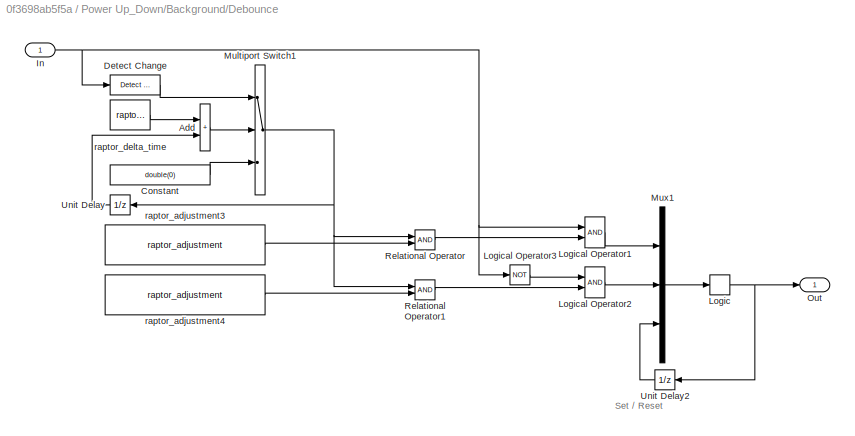
BLOCK [SubSystem] Power Up_Down/Background/Debounce
BLOCK [Sum] Power Up_Down/Background/Debounce/Add
  IconShape = rectangular
BLOCK [Constant] Power Up_Down/Background/Debounce/Constant
  Value = double(0)
BLOCK [Reference] Power Up_Down/Background/Debounce/Detect Change  REF=simulink/Logic and Bit
Operations/Detect
Change
  SourceBlock = simulink/Logic and Bit\nOperations/Detect\nChange
  SourceType = Detect Change
BLOCK [Inport] Power Up_Down/Background/Debounce/In
BLOCK [CombinatorialLogic] Power Up_Down/Background/Debounce/Logic
  TruthTable = [0;1;0;0;1;1;0;0]
BLOCK [Logic] Power Up_Down/Background/Debounce/Logical Operator1
  AllPortsSameDT = off
  OutDataTypeStr = boolean
BLOCK [Logic] Power Up_Down/Background/Debounce/Logical Operator2
  AllPortsSameDT = off
  OutDataTypeStr = boolean
BLOCK [Logic] Power Up_Down/Background/Debounce/Logical Operator3
  AllPortsSameDT = off
  Inputs = 1
  Operator = NOT
  OutDataTypeStr = boolean
BLOCK [MultiPortSwitch] Power Up_Down/Background/Debounce/Multiport Switch1
  DataPortOrder = Zero-based contiguous
  InputSameDT = off
  Inputs = 2
  SaturateOnIntegerOverflow = off
  zeroidx = on
BLOCK [Mux] Power Up_Down/Background/Debounce/Mux1
  DisplayOption = bar
  Inputs = 3
BLOCK [Outport] Power Up_Down/Background/Debounce/Out
  VectorParamsAs1DForOutWhenUnconnected = off
BLOCK [RelationalOperator] Power Up_Down/Background/Debounce/Relational Operator
  InputSameDT = off
  OutDataTypeStr = boolean
BLOCK [RelationalOperator] Power Up_Down/Background/Debounce/Relational Operator1
  InputSameDT = off
  OutDataTypeStr = boolean
BLOCK [UnitDelay] Power Up_Down/Background/Debounce/Unit Delay
  HasFrameUpgradeWarning = on
  SampleTime = -1
BLOCK [UnitDelay] Power Up_Down/Background/Debounce/Unit Delay2
  HasFrameUpgradeWarning = on
  InitialCondition = 1
  SampleTime = -1
BLOCK [Reference] Power Up_Down/Background/Debounce/raptor_adjustment3  REF=Raptor_lib/Data Storage/raptor_adjustment
  SourceBlock = Raptor_lib/Data Storage/raptor_adjustment
  SourceProductName = Raptor
  SourceType = Adjustment
BLOCK [Reference] Power Up_Down/Background/Debounce/raptor_adjustment4  REF=Raptor_lib/Data Storage/raptor_adjustment
  SourceBlock = Raptor_lib/Data Storage/raptor_adjustment
  SourceProductName = Raptor
  SourceType = Adjustment
BLOCK [Reference] Power Up_Down/Background/Debounce/raptor_delta_time  REF=Raptor_lib/Triggers/raptor_delta_time
  SourceBlock = Raptor_lib/Triggers/raptor_delta_time
  SourceProductName = Raptor
  SourceType = Delta Time
BLOCK [Logic] Power Up_Down/Background/Logical Operator1
  Operator = OR
  OutDataTypeStr = boolean
BLOCK [Logic] Power Up_Down/Background/Logical Operator2
  Inputs = 3
  Operator = OR
  OutDataTypeStr = boolean
BLOCK [SubSystem] Power Up_Down/Background/Raise Shutdown Event
  TreatAsAtomicUnit = on
BLOCK [Constant] Power Up_Down/Background/Raise Shutdown Event/Constant
  Value = boolean(1)
BLOCK [Reference] Power Up_Down/Background/Raise Shutdown Event/Function-Call Generator  REF=simulink/Ports &
Subsystems/Function-Call
Generator
  SourceBlock = simulink/Ports &\nSubsystems/Function-Call\nGenerator
  SourceType = Function-Call Generator
BLOCK [TriggerPort] Power Up_Down/Background/Raise Shutdown Event/Trigger
  StatesWhenEnabling = held
  TriggerType = falling
  VariantControl = Variant
BLOCK [Reference] Power Up_Down/Background/Raise Shutdown Event/raptor_data_def  REF=Raptor_lib/Data Storage/raptor_data_def
  SourceBlock = Raptor_lib/Data Storage/raptor_data_def
  SourceProductName = Raptor
  SourceType = Data Store Definition Block
BLOCK [Reference] Power Up_Down/Background/Raise Shutdown Event/raptor_data_write  REF=Raptor_lib/Data Storage/raptor_data_write
  SourceBlock = Raptor_lib/Data Storage/raptor_data_write
  SourceProductName = Raptor
  SourceType = Data Write Block
BLOCK [Reference] Power Up_Down/Background/Raise Shutdown Event/raptor_shutdown  REF=Raptor_lib/Triggers/raptor_shutdown
  SourceBlock = Raptor_lib/Triggers/raptor_shutdown
  SourceProductName = Raptor
  SourceType = Shutdown
BLOCK [SubSystem] Power Up_Down/Background/Raise Startup Event
  TreatAsAtomicUnit = on
BLOCK [EnablePort] Power Up_Down/Background/Raise Startup Event/Enable
BLOCK [Reference] Power Up_Down/Background/Raise Startup Event/Function-Call Generator  REF=simulink/Ports &
Subsystems/Function-Call
Generator
  SourceBlock = simulink/Ports &\nSubsystems/Function-Call\nGenerator
  SourceType = Function-Call Generator
BLOCK [TriggerPort] Power Up_Down/Background/Raise Startup Event/Trigger
  StatesWhenEnabling = held
  VariantControl = Variant
BLOCK [Reference] Power Up_Down/Background/Raise Startup Event/raptor_data_def  REF=Raptor_lib/Data Storage/raptor_data_def
  SourceBlock = Raptor_lib/Data Storage/raptor_data_def
  SourceProductName = Raptor
  SourceType = Data Store Definition Block
BLOCK [Reference] Power Up_Down/Background/Raise Startup Event/raptor_data_def1  REF=Raptor_lib/Data Storage/raptor_data_def
  SourceBlock = Raptor_lib/Data Storage/raptor_data_def
  SourceProductName = Raptor
  SourceType = Data Store Definition Block
BLOCK [Reference] Power Up_Down/Background/Raise Startup Event/raptor_data_read  REF=Raptor_lib/Data Storage/raptor_data_read
  SourceBlock = Raptor_lib/Data Storage/raptor_data_read
  SourceProductName = Raptor
  SourceType = Data Read Block
BLOCK [Reference] Power Up_Down/Background/Raise Startup Event/raptor_data_write  REF=Raptor_lib/Data Storage/raptor_data_write
  SourceBlock = Raptor_lib/Data Storage/raptor_data_write
  SourceProductName = Raptor
  SourceType = Data Write Block
BLOCK [Reference] Power Up_Down/Background/Raise Startup Event/raptor_startup  REF=Raptor_lib/Triggers/raptor_startup
  SourceBlock = Raptor_lib/Triggers/raptor_startup
  SourceProductName = Raptor
  SourceType = Startup
BLOCK [SubSystem] Power Up_Down/Background/Store EEPROM
  TreatAsAtomicUnit = on
BLOCK [Sum] Power Up_Down/Background/Store EEPROM/Add
  IconShape = rectangular
  Inputs = -+
BLOCK [Reference] Power Up_Down/Background/Store EEPROM/Function-Call Generator  REF=simulink/Ports &
Subsystems/Function-Call
Generator
  SourceBlock = simulink/Ports &\nSubsystems/Function-Call\nGenerator
  SourceType = Function-Call Generator
BLOCK [TriggerPort] Power Up_Down/Background/Store EEPROM/Trigger
  StatesWhenEnabling = held
  TriggerType = falling
  VariantControl = Variant
BLOCK [Reference] Power Up_Down/Background/Store EEPROM/raptor_data_read  REF=Raptor_lib/Data Storage/raptor_data_read
  SourceBlock = Raptor_lib/Data Storage/raptor_data_read
  SourceProductName = Raptor
  SourceType = Data Read Block
BLOCK [Reference] Power Up_Down/Background/Store EEPROM/raptor_data_read1  REF=Raptor_lib/Data Storage/raptor_data_read
  SourceBlock = Raptor_lib/Data Storage/raptor_data_read
  SourceProductName = Raptor
  SourceType = Data Read Block
BLOCK [Reference] Power Up_Down/Background/Store EEPROM/raptor_data_write  REF=Raptor_lib/Data Storage/raptor_data_write
  SourceBlock = Raptor_lib/Data Storage/raptor_data_write
  SourceProductName = Raptor
  SourceType = Data Write Block
BLOCK [Reference] Power Up_Down/Background/Store EEPROM/raptor_store_nv  REF=Raptor_lib/Data Storage/raptor_store_nv
  SourceBlock = Raptor_lib/Data Storage/raptor_store_nv
  SourceProductName = Raptor
  SourceType = Store NonVolatile
BLOCK [UnitDelay] Power Up_Down/Background/Unit Delay
  HasFrameUpgradeWarning = on
  SampleTime = -1
BLOCK [UnitDelay] Power Up_Down/Background/Unit Delay1
  HasFrameUpgradeWarning = on
  SampleTime = -1
BLOCK [TriggerPort] Power Up_Down/Background/f
  TriggerType = function-call
  VariantControl = Variant
  ZeroCross = off
BLOCK [Reference] Power Up_Down/Background/raptor_data_def  REF=Raptor_lib/Data Storage/raptor_data_def
  SourceBlock = Raptor_lib/Data Storage/raptor_data_def
  SourceProductName = Raptor
  SourceType = Data Store Definition Block
BLOCK [Reference] Power Up_Down/Background/raptor_data_def1  REF=Raptor_lib/Data Storage/raptor_data_def
  SourceBlock = Raptor_lib/Data Storage/raptor_data_def
  SourceProductName = Raptor
  SourceType = Data Store Definition Block
BLOCK [Reference] Power Up_Down/Background/raptor_data_read  REF=Raptor_lib/Data Storage/raptor_data_read
  SourceBlock = Raptor_lib/Data Storage/raptor_data_read
  SourceProductName = Raptor
  SourceType = Data Read Block
BLOCK [Reference] Power Up_Down/Background/raptor_data_read1  REF=Raptor_lib/Data Storage/raptor_data_read
  SourceBlock = Raptor_lib/Data Storage/raptor_data_read
  SourceProductName = Raptor
  SourceType = Data Read Block
BLOCK [Reference] Power Up_Down/Background/raptor_data_write  REF=Raptor_lib/Data Storage/raptor_data_write
  SourceBlock = Raptor_lib/Data Storage/raptor_data_write
  SourceProductName = Raptor
  SourceType = Data Write Block
BLOCK [Reference] Power Up_Down/Background/raptor_digital_in  REF=Raptor_lib/Input & Output/raptor_digital_in
  SourceBlock = Raptor_lib/Input & Output/raptor_digital_in
  SourceProductName = Raptor
  SourceType = Digital Input Block
BLOCK [Reference] Power Up_Down/Background/raptor_digital_out  REF=Raptor_lib/Input & Output/raptor_digital_out
  SourceBlock = Raptor_lib/Input & Output/raptor_digital_out
  SourceProductName = Raptor
  SourceType = Digital Output
BLOCK [Reference] Power Up_Down/Background/raptor_sfun_nv_status  REF=Raptor_lib/Data Storage/raptor_sfun_nv_status
  SourceBlock = Raptor_lib/Data Storage/raptor_sfun_nv_status
  SourceProductName = Raptor
  SourceType = Nonvolatile Status
BLOCK [Reference] Power Up_Down/raptor_timed_trigger  REF=Raptor_lib/Triggers/raptor_timed_trigger
  SourceBlock = Raptor_lib/Triggers/raptor_timed_trigger
  SourceProductName = Raptor
  SourceType = Timed Trigger Block
BLOCK [Reference] raptor_app_trigger  REF=Raptor_lib/Triggers/raptor_app_trigger
  NameLocation = left
  SourceBlock = Raptor_lib/Triggers/raptor_app_trigger
  SourceProductName = Raptor
  SourceType = App Trigger Block
BLOCK [Reference] raptor_can_def  REF=Raptor_lib/CAN/raptor_can_def
  SourceBlock = Raptor_lib/CAN/raptor_can_def
  SourceProductName = Raptor
  SourceType = CAN Definition
BLOCK [Reference] raptor_can_def1  REF=Raptor_lib/CAN/raptor_can_def
  SourceBlock = Raptor_lib/CAN/raptor_can_def
  SourceProductName = Raptor
  SourceType = CAN Definition
BLOCK [Reference] raptor_fault_manager  REF=Raptor_lib/Faults/raptor_fault_manager
  SourceBlock = Raptor_lib/Faults/raptor_fault_manager
  SourceProductName = Raptor
  SourceType = Fault Manager
BLOCK [Reference] raptor_target_def  REF=Raptor_lib/Configuration/raptor_target_def
  SourceBlock = Raptor_lib/Configuration/raptor_target_def
  SourceProductName = Raptor
  SourceType = Target Definition Block
BLOCK [Reference] raptor_timed_trigger  REF=Raptor_lib/Triggers/raptor_timed_trigger
  NameLocation = left
  SourceBlock = Raptor_lib/Triggers/raptor_timed_trigger
  SourceProductName = Raptor
  SourceType = Timed Trigger Block
BLOCK [Reference] raptor_xcp_def  REF=Raptor_lib/Configuration/raptor_xcp_def
  SourceBlock = Raptor_lib/Configuration/raptor_xcp_def
  SourceProductName = Raptor
  SourceType = XCP Definition Block
ANNOTATION Foreground: Throttle Input
ANNOTATION Foreground: Fan Control
ANNOTATION Foreground: Flow Sensor In
ANNOTATION Foreground: SYSTEM CONTROL CODE
ANNOTATION Foreground: BMS SOC Input (0-5V)
ANNOTATION Foreground: Brake Switch (VSM Mode)
ANNOTATION Foreground: Charge mode input (0-5V)
ANNOTATION Foreground: DRIVETRAIN COOLING CODE
ANNOTATION Foreground: Error Input Active Low
ANNOTATION Foreground: Forward Enable (VSM Mode)
ANNOTATION Foreground: GLV Hall Effect Input (0-5V)
ANNOTATION Foreground: Ignition (VSM Mode)
ANNOTATION Foreground: Pre-charge Status input (0-5V)
ANNOTATION Foreground: RTDS Signal
ANNOTATION Foreground: Starter Button Input
ANNOTATION Foreground: Throttle PWM (VSM Mode)
ANNOTATION Foreground: Temp Sensor In
ANNOTATION Foreground: Temperature Sensor
ANNOTATION Foreground: All in C
ANNOTATION Foreground: Averaging POT1 & 2
ANNOTATION Foreground: Based on Cascadia and Emrax datasheets
ANNOTATION Foreground: Can handle about 4Hz at minimum
ANNOTATION Foreground: Defaults throttle to 0% on error, do not change this unless you know what you're doing
ANNOTATION Foreground: Delay temp high fault for 5 seconds upon startup, default to 25 at startup
ANNOTATION Foreground: Fan PWM Frequency is 24KHz 5/(2*pi*tau) --> tau=Larm/Rarm Larm = 0.137mH Rarm = 4.114ohm
ANNOTATION Foreground: Fault function (for some reason)
ANNOTATION Foreground: High: Above ~2.5V Low: Less than 2.5V
ANNOTATION Foreground: Hold inverted PWM low
ANNOTATION Foreground: Linearity Error = +/-0.5% Ignored in calculations
ANNOTATION Foreground: Maximum amperage of sensor, independent of direction
ANNOTATION Foreground: NOT REFLECTED IN TOP-LEVEL: COMPETITION CHANGE
ANNOTATION Foreground: Persistent - will remain after VCU power cycle
ANNOTATION Foreground: Range from +/-50A Negative and positive are dependent on direction of sensor install
ANNOTATION Foreground: Resistance in kilo-ohm
ANNOTATION Foreground: SOC Percentage
ANNOTATION Foreground: Throttle Plausibility
ANNOTATION Foreground: Throttle enable signal - cooling turns on when Inverter and throttle are enabled
ANNOTATION Foreground: Vref = 2.5V --> internal reference Change this value if using an external reference: Range is 0.5 to 2.65V
ANNOTATION Foreground: assumes 80W @ 100% DC
ANNOTATION Foreground/Command Troque: 0 for reverse when Inverter is enabled 0 for off when inverter is disabled
ANNOTATION Foreground/Command Troque: 1 is forward
ANNOTATION Foreground/Command Troque: Running in reverse due to swapped motor phases
ANNOTATION Foreground/Command Troque: Saturation does not allow negative torque request- will need to be removed for a regenerative braking system
ANNOTATION Foreground/Triggered Single Pulse/+ve edge detect: Edge
ANNOTATION Function-Call Subsystem: Clear PM100DX Faults on startup
ANNOTATION Function-Call Subsystem: Address number for fault clear
ANNOTATION Function-Call Subsystem: Command to write
ANNOTATION Function-Call Subsystem: Write a '0' for fault clear
ANNOTATION Power Up_Down/Background: Notes : - Calling the shutdown task stops the foreground tasks. However, background tasks continue, so the reading of key switch must be in this subsystem to allow the module to resume operation (by calling the startup task) if keyswitch is turned back on before the module actually turns off. - The Startup Event is automatically called when the module is powered on after being completely off. The ...<+96ch>
ANNOTATION Power Up_Down/Background/Debounce: Set / Reset
LINE Foreground/1-D Lookup Table:1 -> Foreground/for 0.01% inc5:1
LINE Foreground/100 C:1 -> Foreground/GreaterThan4:2
LINE Foreground/100 Ohm:1 -> Foreground/Less Than1:2
LINE Foreground/100 kOhm:1 -> Foreground/GreaterThan2:2
LINE Foreground/25C default:1 -> Foreground/Switch2:3
LINE Foreground/ADC_corrected:1 -> Foreground/Product3:2
NET Foreground/Abs1:1 -> Foreground/Relational Operator1:1, Foreground/Switch3:1
LINE Foreground/Abs:1 -> Foreground/raptor_override3:1
LINE Foreground/Add2:1 -> Foreground/Divide:2
NET Foreground/Add:1 -> Foreground/Unit Delay:1, Foreground/raptor_measurement3:1
LINE Foreground/Calculate Torque/APP%:1 -> Foreground/Calculate Torque/Product:1
LINE Foreground/Calculate Torque/Product:1 -> Foreground/Calculate Torque/Safety factor:1
LINE Foreground/Calculate Torque/RPM:1 -> Foreground/Calculate Torque/raptor_table_1d:1
LINE Foreground/Calculate Torque/Safety factor:1 -> Foreground/Calculate Torque/Actual Torque:1
LINE Foreground/Calculate Torque/raptor_table_1d:1 -> Foreground/Calculate Torque/Product:2
LINE Foreground/Calculate Torque:1 -> Foreground/raptor_override16:1
LINE Foreground/Command Troque/Inverter Enable:1 -> Foreground/Command Troque/raptor_override2:1
LINE Foreground/Command Troque/Requested Torque:1 -> Foreground/Command Troque/Saturation:1
LINE Foreground/Command Troque/Saturation:1 -> Foreground/Command Troque/raptor_override:1
LINE Foreground/Command Troque/raptor_adjustment:1 -> Foreground/Command Troque/raptor_override1:1
NET Foreground/Command Troque/raptor_override1:1 -> Foreground/Command Troque/raptor_can_txmsg:1, Foreground/Command Troque/raptor_measurement1:1
LINE Foreground/Command Troque/raptor_override2:1 -> Foreground/Command Troque/raptor_can_txmsg:2
NET Foreground/Command Troque/raptor_override:1 -> Foreground/Command Troque/raptor_can_txmsg:3, Foreground/Command Troque/raptor_measurement:1
LINE Foreground/Compare To Constant1:1 -> Foreground/Logical Operator8:3
NET Foreground/Compare To Constant2:1 -> Foreground/raptor_override22:1, Foreground/raptor_override2:1
LINE Foreground/Compare To Constant4:1 -> Foreground/raptor_override23:1
NET Foreground/Compare To Constant:1 -> Foreground/Logical Operator1:1, Foreground/NOT:1, Foreground/raptor_measurement8:1
LINE Foreground/Constant11:1 -> Foreground/for 0.01% inc6:1
LINE Foreground/Constant1:1 -> Foreground/Add:1
NET Foreground/Constant2:1 -> Foreground/Divide1:2, Foreground/Sum:2
LINE Foreground/Constant3:1 -> Foreground/Product1:2
LINE Foreground/Constant4:1 -> Foreground/Switch1:3
LINE Foreground/Constant5:1 -> Foreground/I: Temp. () O: Power (W):3
LINE Foreground/Constant6:1 -> Foreground/Compare To Constant4:1
LINE Foreground/Constant7:1 -> Foreground/Vector Concatenate:4
LINE Foreground/Constant8:1 -> Foreground/Mod:2
LINE Foreground/Constant9:1 -> Foreground/Logical Operator1:5
LINE Foreground/Constant:1 -> Foreground/raptor_override17:1
LINE Foreground/Conv. to Hz1:1 -> Foreground/raptor_override19:1
LINE Foreground/Conv. to Hz:1 -> Foreground/raptor_override20:1
LINE Foreground/D Latch:1 -> Foreground/raptor_override11:1
LINE Foreground/D Latch:2 -> Foreground/raptor_measurement20:1
LINE Foreground/Delay:1 -> Foreground/Switch2:2
LINE Foreground/Difference1:1 -> Foreground/GreaterThan3:1
LINE Foreground/Difference:1 -> Foreground/GreaterThan1:1
LINE Foreground/Divide1:1 -> Foreground/Product1:1
NET Foreground/Divide:1 -> Foreground/GreaterThan2:1, Foreground/Less Than1:1, Foreground/raptor_override13:1
LINE Foreground/Enable switch:1 -> Foreground/Delay:1
LINE Foreground/F:1 -> Foreground/Vector Concatenate:1
NET Foreground/GLV Used Ah/Add1:1 -> Foreground/GLV Used Ah/raptor_data_write:1, Foreground/GLV Used Ah/raptor_measurement32:1
LINE Foreground/GLV Used Ah/Add2:1 -> Foreground/GLV Used Ah/Divide:1
LINE Foreground/GLV Used Ah/Constant1:1 -> Foreground/GLV Used Ah/Divide:2
LINE Foreground/GLV Used Ah/Constant8:1 -> Foreground/GLV Used Ah/Divide2:2
LINE Foreground/GLV Used Ah/Divide2:1 -> Foreground/GLV Used Ah/Add1:2
LINE Foreground/GLV Used Ah/Divide:1 -> Foreground/GLV Used Ah/raptor_measurement1:1
LINE Foreground/GLV Used Ah/In1:1 -> Foreground/GLV Used Ah/Divide2:1
LINE Foreground/GLV Used Ah/raptor_data_read1:1 -> Foreground/GLV Used Ah/Add2:2
LINE Foreground/GLV Used Ah/raptor_data_read2:1 -> Foreground/GLV Used Ah/Add2:1
LINE Foreground/GLV Used Ah/raptor_data_read:1 -> Foreground/GLV Used Ah/Add1:1
LINE Foreground/GreaterThan1:1 -> Foreground/raptor_fault_def:1
LINE Foreground/GreaterThan2:1 -> Foreground/raptor_fault_def1:1
LINE Foreground/GreaterThan3:1 -> Foreground/raptor_fault_def4:1
LINE Foreground/GreaterThan4:1 -> Foreground/raptor_fault_def5:1
LINE Foreground/I: 0-80W O: DC:1 -> Foreground/Switch1:1
LINE Foreground/I: R (kOhm) O: T (C):1 -> Foreground/raptor_override18:1
LINE Foreground/I: Temp. () O: Power (W):1 -> Foreground/I: 0-80W O: DC:1
LINE Foreground/Less Than1:1 -> Foreground/raptor_fault_def2:1
LINE Foreground/Less Than2:1 -> Foreground/raptor_fault_def3:1
LINE Foreground/Logical Operator1:1 -> Foreground/raptor_override10:1
NET Foreground/Logical Operator2:1 -> Foreground/Logical Operator1:4, Foreground/Logical Operator8:2
LINE Foreground/Logical Operator3:1 -> Foreground/raptor_override14:1
NET Foreground/Logical Operator8:1 -> Foreground/Logical Operator:2, Foreground/raptor_measurement11:1
LINE Foreground/Logical Operator:1 -> Foreground/D Latch:2
LINE Foreground/MATLAB Function1:1 -> Foreground/raptor_override15:1
LINE Foreground/MATLAB Function2:1 -> Foreground/raptor_measurement:1
LINE Foreground/MATLAB Function:1 -> Foreground/Compare To Constant:1
LINE Foreground/Mod:1 -> Foreground/GLV Used Ah:trigger
NET Foreground/Mux:1 -> Foreground/MATLAB Function1:1, Foreground/MATLAB Function:1
NET Foreground/NOT1:1 -> Foreground/D Latch:1, Foreground/Logical Operator:1, Foreground/NOT2:1, Foreground/raptor_measurement32:1
LINE Foreground/NOT2:1 -> Foreground/Triggered Single Pulse:1
LINE Foreground/NOT:1 -> Foreground/raptor_fault_def6:1
LINE Foreground/POT1:1 -> Foreground/raptor_override8:1
LINE Foreground/POT2:1 -> Foreground/raptor_override9:1
LINE Foreground/PU (Ohms):1 -> Foreground/Product:2
NET Foreground/Product1:1 -> Foreground/GLV Used Ah:1, Foreground/raptor_measurement16:1
NET Foreground/Product3:1 -> Foreground/Add2:2, Foreground/Product:1
LINE Foreground/Product:1 -> Foreground/Divide:1
LINE Foreground/Q (L//H) vs. F (Hz):1 -> Foreground/Conv. to Hz1:1
LINE Foreground/Relational Operator1:1 -> Foreground/Switch3:2
LINE Foreground/Relational Operator2:1 -> Foreground/Switch4:2
LINE Foreground/Sum:1 -> Foreground/Divide1:1
LINE Foreground/Switch1:1 -> Foreground/for 0.01% inc:1
LINE Foreground/Switch2:1 -> Foreground/GreaterThan4:1
NET Foreground/Switch3:1 -> Foreground/Unit Delay1:1, Foreground/raptor_measurement35:1
NET Foreground/Switch4:1 -> Foreground/Unit Delay2:1, Foreground/raptor_measurement34:1
NET Foreground/Switch:1 -> Foreground/1-D Lookup Table:1, Foreground/Calculate Torque:1, Foreground/raptor_measurement5:1
LINE Foreground/Triggered Single Pulse/+ve edge detect/Delay Input1:1 -> Foreground/Triggered Single Pulse/+ve edge detect/FixPt Relational Operator:2
LINE Foreground/Triggered Single Pulse/+ve edge detect/FixPt Relational Operator:1 -> Foreground/Triggered Single Pulse/+ve edge detect/out:1
NET Foreground/Triggered Single Pulse/+ve edge detect/Positive:1 -> Foreground/Triggered Single Pulse/+ve edge detect/Delay Input1:1, Foreground/Triggered Single Pulse/+ve edge detect/FixPt Relational Operator:1
LINE Foreground/Triggered Single Pulse/+ve edge detect/signal:1 -> Foreground/Triggered Single Pulse/+ve edge detect/Positive:1
LINE Foreground/Triggered Single Pulse/+ve edge detect:1 -> Foreground/Triggered Single Pulse/Add1:2
LINE Foreground/Triggered Single Pulse/Add1:1 -> Foreground/Triggered Single Pulse/Unit Delay1:1
LINE Foreground/Triggered Single Pulse/Add:1 -> Foreground/Triggered Single Pulse/Product1:2
LINE Foreground/Triggered Single Pulse/Compare To Constant:1 -> Foreground/Triggered Single Pulse/Logical Operator:1
LINE Foreground/Triggered Single Pulse/Constant2:1 -> Foreground/Triggered Single Pulse/Product:1
LINE Foreground/Triggered Single Pulse/Logical Operator:1 -> Foreground/Triggered Single Pulse/Product3:2
LINE Foreground/Triggered Single Pulse/Product1:1 -> Foreground/Triggered Single Pulse/Unit Delay:1
NET Foreground/Triggered Single Pulse/Product3:1 -> Foreground/Triggered Single Pulse/Add1:1, Foreground/Triggered Single Pulse/Product1:1, Foreground/Triggered Single Pulse/Product:2, Foreground/Triggered Single Pulse/Pulse:1
LINE Foreground/Triggered Single Pulse/Product:1 -> Foreground/Triggered Single Pulse/Add:1
LINE Foreground/Triggered Single Pulse/Saturation:1 -> Foreground/Triggered Single Pulse/Product3:1
LINE Foreground/Triggered Single Pulse/Trigger:1 -> Foreground/Triggered Single Pulse/+ve edge detect:1
LINE Foreground/Triggered Single Pulse/Unit Delay1:1 -> Foreground/Triggered Single Pulse/Saturation:1
NET Foreground/Triggered Single Pulse/Unit Delay:1 -> Foreground/Triggered Single Pulse/Add:2, Foreground/Triggered Single Pulse/Compare To Constant:1
LINE Foreground/Triggered Single Pulse:1 -> Foreground/Compare To Constant2:1
NET Foreground/Unit Delay1:1 -> Foreground/Relational Operator1:2, Foreground/Switch3:3
NET Foreground/Unit Delay2:1 -> Foreground/Relational Operator2:2, Foreground/Switch4:3
LINE Foreground/Unit Delay:1 -> Foreground/Add:2
LINE Foreground/Vector Concatenate:1 -> Foreground/I: Temp. () O: Power (W):2
LINE Foreground/Vs (V):1 -> Foreground/Add2:1
LINE Foreground/for 0.01% inc3:1 -> Foreground/raptor_pwm_out:2
LINE Foreground/for 0.01% inc4:1 -> Foreground/raptor_override25:1
LINE Foreground/for 0.01% inc5:1 -> Foreground/for 0.01% inc4:1
LINE Foreground/for 0.01% inc6:1 -> Foreground/raptor_pwm_out2:2
LINE Foreground/for 0.01% inc:1 -> Foreground/raptor_override21:1
LINE Foreground/raptor_adjustment2:1 -> Foreground/Vector Concatenate:2
LINE Foreground/raptor_adjustment3:1 -> Foreground/Vector Concatenate:3
LINE Foreground/raptor_adjustment4:1 -> Foreground/for 0.01% inc3:1
LINE Foreground/raptor_adjustment5:1 -> Foreground/GreaterThan1:2
LINE Foreground/raptor_adjustment6:1 -> Foreground/Less Than2:2
LINE Foreground/raptor_adjustment7:1 -> Foreground/GreaterThan3:2
LINE Foreground/raptor_analog_in1:1 -> Foreground/POT2:1
LINE Foreground/raptor_analog_in2:1 -> Foreground/raptor_override1:1
LINE Foreground/raptor_analog_in3:1 -> Foreground/raptor_override4:1
LINE Foreground/raptor_analog_in4:1 -> Foreground/raptor_override12:1
LINE Foreground/raptor_analog_in5:1 -> Foreground/raptor_override7:1
LINE Foreground/raptor_analog_in:1 -> Foreground/POT1:1
NET Foreground/raptor_can_rxmsg1:1 -> Foreground/Relational Operator2:1, Foreground/Switch4:1
LINE Foreground/raptor_can_rxmsg1:2 -> Foreground/Abs1:1
LINE Foreground/raptor_can_rxmsg:1 -> Foreground/Abs:1
LINE Foreground/raptor_digital_in1:1 -> Foreground/raptor_override5:1
LINE Foreground/raptor_digital_in2:1 -> Foreground/raptor_override6:1
LINE Foreground/raptor_digital_in:1 -> Foreground/raptor_override:1
NET Foreground/raptor_fault_status1:1 -> Foreground/Logical Operator3:2, Foreground/raptor_measurement22:1
NET Foreground/raptor_fault_status2:1 -> Foreground/Logical Operator3:3, Foreground/raptor_measurement23:1
NET Foreground/raptor_fault_status3:1 -> Foreground/Logical Operator3:4, Foreground/raptor_measurement24:1
NET Foreground/raptor_fault_status4:1 -> Foreground/Logical Operator3:5, Foreground/raptor_measurement25:1
NET Foreground/raptor_fault_status5:1 -> Foreground/Logical Operator3:6, Foreground/raptor_measurement26:1
NET Foreground/raptor_fault_status:1 -> Foreground/Logical Operator3:1, Foreground/raptor_measurement21:1
LINE Foreground/raptor_freq_in:1 -> Foreground/Conv. to Hz:1
NET Foreground/raptor_override10:1 -> Foreground/Command Troque:2, Foreground/NOT2:2, Foreground/Switch1:2, Foreground/Switch:2, Foreground/raptor_measurement9:1, Foreground/raptor_override24:1
NET Foreground/raptor_override11:1 -> Foreground/Logical Operator1:2, Foreground/raptor_measurement10:1
NET Foreground/raptor_override12:1 -> Foreground/Product3:1, Foreground/raptor_measurement13:1
NET Foreground/raptor_override13:1 -> Foreground/I: R (kOhm) O: T (C):1, Foreground/raptor_measurement14:1
NET Foreground/raptor_override14:1 -> Foreground/Logical Operator7:1, Foreground/raptor_measurement17:1
LINE Foreground/raptor_override15:1 -> Foreground/Switch:1
LINE Foreground/raptor_override16:1 -> Foreground/Command Troque:1
LINE Foreground/raptor_override17:1 -> Foreground/Switch:3
NET Foreground/raptor_override18:1 -> Foreground/Difference:1, Foreground/I: Temp. () O: Power (W):1, Foreground/Switch2:1, Foreground/raptor_measurement27:1
NET Foreground/raptor_override19:1 -> Foreground/Difference1:1, Foreground/Less Than2:1, Foreground/raptor_measurement19:1
LINE Foreground/raptor_override1:1 -> Foreground/Compare To Constant1:1
NET Foreground/raptor_override20:1 -> Foreground/Q (L//H) vs. F (Hz):1, Foreground/raptor_measurement18:1
NET Foreground/raptor_override21:1 -> Foreground/raptor_measurement28:1, Foreground/raptor_pwm_out:1
NET Foreground/raptor_override22:1 -> Foreground/raptor_digital_out4:1, Foreground/raptor_measurement30:1
NET Foreground/raptor_override23:1 -> Foreground/raptor_digital_out5:1, Foreground/raptor_measurement31:1
NET Foreground/raptor_override24:1 -> Foreground/raptor_digital_out3:1, Foreground/raptor_measurement33:1
NET Foreground/raptor_override25:1 -> Foreground/raptor_measurement29:1, Foreground/raptor_pwm_out2:1
NET Foreground/raptor_override2:1 -> Foreground/raptor_digital_out:1, Foreground/raptor_measurement12:1
NET Foreground/raptor_override3:1 -> Foreground/Calculate Torque:2, Foreground/raptor_measurement4:1
LINE Foreground/raptor_override4:1 -> Foreground/MATLAB Function2:1
NET Foreground/raptor_override5:1 -> Foreground/Logical Operator1:3, Foreground/Logical Operator8:1, Foreground/raptor_measurement1:1
NET Foreground/raptor_override6:1 -> Foreground/Logical Operator2:1, Foreground/raptor_measurement2:1
NET Foreground/raptor_override7:1 -> Foreground/Sum:1, Foreground/raptor_measurement15:1
NET Foreground/raptor_override8:1 -> Foreground/Mux:1, Foreground/raptor_measurement6:1
NET Foreground/raptor_override9:1 -> Foreground/Mux:2, Foreground/raptor_measurement7:1
LINE Foreground/raptor_override:1 -> Foreground/NOT1:1
LINE Foreground/raptor_time:1 -> Foreground/Mod:1
LINE Function-Call Subsystem/Compare To Constant:1 -> Function-Call Subsystem/If:1
LINE Function-Call Subsystem/Constant1:1 -> Function-Call Subsystem/raptor_can_txmsg:1
LINE Function-Call Subsystem/Constant2:1 -> Function-Call Subsystem/raptor_can_txmsg:3
LINE Function-Call Subsystem/Constant:1 -> Function-Call Subsystem/raptor_can_txmsg:2
LINE Function-Call Subsystem/Data Type Conversion3:1 -> Function-Call Subsystem/raptor_data_write:1
LINE Function-Call Subsystem/If Action Subsystem/Constant:1 -> Function-Call Subsystem/If Action Subsystem/raptor_can_txmsg:1
LINE Function-Call Subsystem/If:1 -> Function-Call Subsystem/If Action Subsystem:ifaction
LINE Function-Call Subsystem/raptor_data_read:1 -> Function-Call Subsystem/Compare To Constant:1
LINE Function-Call Subsystem/raptor_time:1 -> Function-Call Subsystem/Data Type Conversion3:1
LINE Power Up_Down/Background/Debounce/Add:1 -> Power Up_Down/Background/Debounce/Multiport Switch1:2
LINE Power Up_Down/Background/Debounce/Constant:1 -> Power Up_Down/Background/Debounce/Multiport Switch1:3
LINE Power Up_Down/Background/Debounce/Detect Change:1 -> Power Up_Down/Background/Debounce/Multiport Switch1:1
NET Power Up_Down/Background/Debounce/In:1 -> Power Up_Down/Background/Debounce/Detect Change:1, Power Up_Down/Background/Debounce/Logical Operator1:1, Power Up_Down/Background/Debounce/Logical Operator3:1
NET Power Up_Down/Background/Debounce/Logic:1 -> Power Up_Down/Background/Debounce/Out:1, Power Up_Down/Background/Debounce/Unit Delay2:1
LINE Power Up_Down/Background/Debounce/Logical Operator1:1 -> Power Up_Down/Background/Debounce/Mux1:1
LINE Power Up_Down/Background/Debounce/Logical Operator2:1 -> Power Up_Down/Background/Debounce/Mux1:2
LINE Power Up_Down/Background/Debounce/Logical Operator3:1 -> Power Up_Down/Background/Debounce/Logical Operator2:1
NET Power Up_Down/Background/Debounce/Multiport Switch1:1 -> Power Up_Down/Background/Debounce/Relational Operator1:1, Power Up_Down/Background/Debounce/Relational Operator:1, Power Up_Down/Background/Debounce/Unit Delay:1
LINE Power Up_Down/Background/Debounce/Mux1:1 -> Power Up_Down/Background/Debounce/Logic:1
LINE Power Up_Down/Background/Debounce/Relational Operator1:1 -> Power Up_Down/Background/Debounce/Logical Operator2:2
LINE Power Up_Down/Background/Debounce/Relational Operator:1 -> Power Up_Down/Background/Debounce/Logical Operator1:2
LINE Power Up_Down/Background/Debounce/Unit Delay2:1 -> Power Up_Down/Background/Debounce/Mux1:3
LINE Power Up_Down/Background/Debounce/Unit Delay:1 -> Power Up_Down/Background/Debounce/Add:2
LINE Power Up_Down/Background/Debounce/raptor_adjustment3:1 -> Power Up_Down/Background/Debounce/Relational Operator:2
LINE Power Up_Down/Background/Debounce/raptor_adjustment4:1 -> Power Up_Down/Background/Debounce/Relational Operator1:2
LINE Power Up_Down/Background/Debounce/raptor_delta_time:1 -> Power Up_Down/Background/Debounce/Add:1
NET Power Up_Down/Background/Debounce:1 -> Power Up_Down/Background/Logical Operator1:1, Power Up_Down/Background/raptor_data_write:1
NET Power Up_Down/Background/Logical Operator1:1 -> Power Up_Down/Background/Logical Operator2:2, Power Up_Down/Background/Raise Shutdown Event:trigger, Power Up_Down/Background/Raise Startup Event:trigger, Power Up_Down/Background/Unit Delay:1
LINE Power Up_Down/Background/Logical Operator2:1 -> Power Up_Down/Background/raptor_digital_out:1
LINE Power Up_Down/Background/Raise Shutdown Event/Constant:1 -> Power Up_Down/Background/Raise Shutdown Event/raptor_data_write:1
LINE Power Up_Down/Background/Raise Shutdown Event/Function-Call Generator:1 -> Power Up_Down/Background/Raise Shutdown Event/raptor_shutdown:trigger
LINE Power Up_Down/Background/Raise Startup Event/Function-Call Generator:1 -> Power Up_Down/Background/Raise Startup Event/raptor_startup:trigger
LINE Power Up_Down/Background/Raise Startup Event/raptor_data_read:1 -> Power Up_Down/Background/Raise Startup Event/raptor_data_write:1
LINE Power Up_Down/Background/Store EEPROM/Add:1 -> Power Up_Down/Background/Store EEPROM/raptor_data_write:1
LINE Power Up_Down/Background/Store EEPROM/Function-Call Generator:1 -> Power Up_Down/Background/Store EEPROM/raptor_store_nv:trigger
LINE Power Up_Down/Background/Store EEPROM/raptor_data_read1:1 -> Power Up_Down/Background/Store EEPROM/Add:2
LINE Power Up_Down/Background/Store EEPROM/raptor_data_read:1 -> Power Up_Down/Background/Store EEPROM/Add:1
LINE Power Up_Down/Background/Unit Delay1:1 -> Power Up_Down/Background/Logical Operator2:3
NET Power Up_Down/Background/Unit Delay:1 -> Power Up_Down/Background/Store EEPROM:trigger, Power Up_Down/Background/Unit Delay1:1
LINE Power Up_Down/Background/raptor_data_read1:1 -> Power Up_Down/Background/Logical Operator1:2
LINE Power Up_Down/Background/raptor_data_read:1 -> Power Up_Down/Background/Raise Startup Event:enable
LINE Power Up_Down/Background/raptor_digital_in:1 -> Power Up_Down/Background/Debounce:1
LINE Power Up_Down/Background/raptor_sfun_nv_status:1 -> Power Up_Down/Background/Logical Operator2:1
LINE Power Up_Down/raptor_timed_trigger:1 -> Power Up_Down/Background:trigger
LINE raptor_app_trigger:1 -> Function-Call Subsystem:trigger
LINE raptor_timed_trigger:1 -> Foreground:trigger
note: NET lines group one-source signal fan-out (src -> all destinations, sorted); 1:1 wires keep LINE
CHART Foreground/MATLAB Function states=1 transitions=1
  STATE_LABEL 'eML_blk_kernel()'
  STATE_LABEL 'SCRIPT:\nfunction y = fcn(u)\ny = abs(u(2)-u(1));\nend\n'
CHART Foreground/MATLAB Function2 states=1 transitions=1
  STATE_LABEL 'eML_blk_kernel()'
  STATE_LABEL 'SCRIPT:\nfunction y = fcn(u)\ny = u/4095*100;\nend\n'
CHART Foreground/MATLAB Function1 states=1 transitions=1
  STATE_LABEL 'eML_blk_kernel()'
  STATE_LABEL 'SCRIPT:\nfunction y = fcn(u)\ny = (u(2)+u(1))/2;\nend\n'
CHART  states=0 transitions=0
CHART  states=0 transitions=0
CHART  states=0 transitions=0
